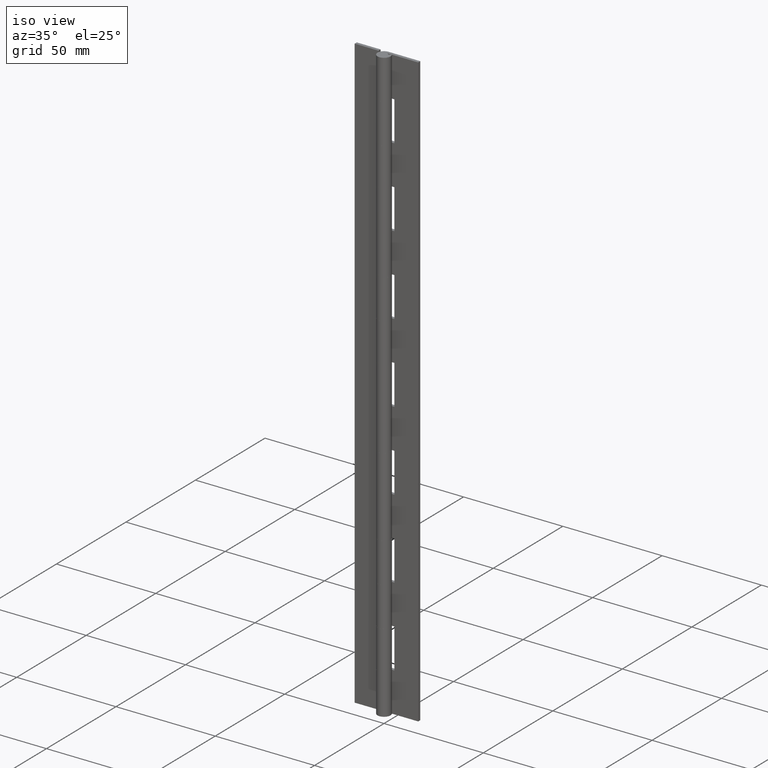
[diagram: clean part render]
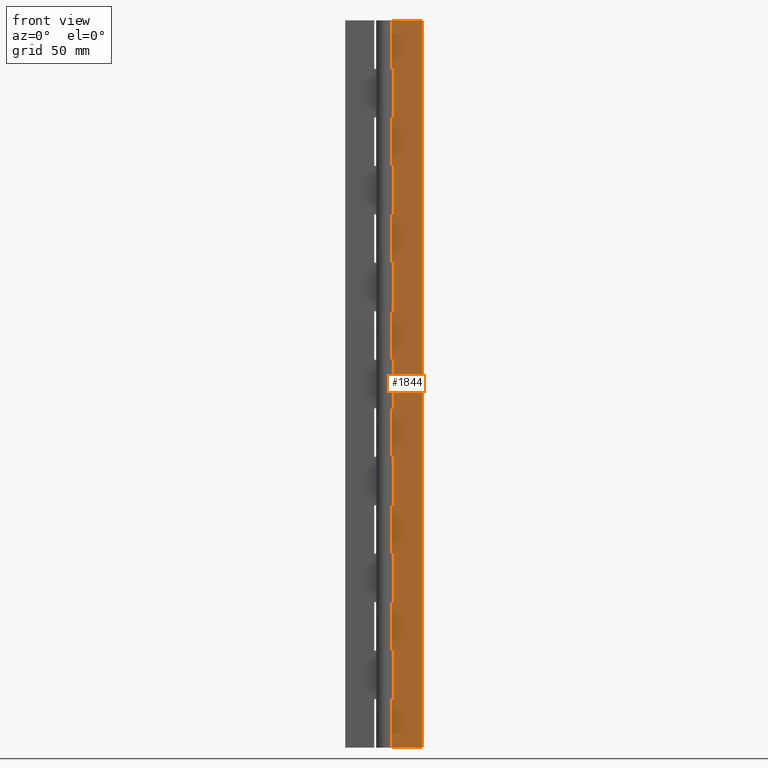
[diagram: tour spotlight — one face highlighted and labeled with its STEP entity id]
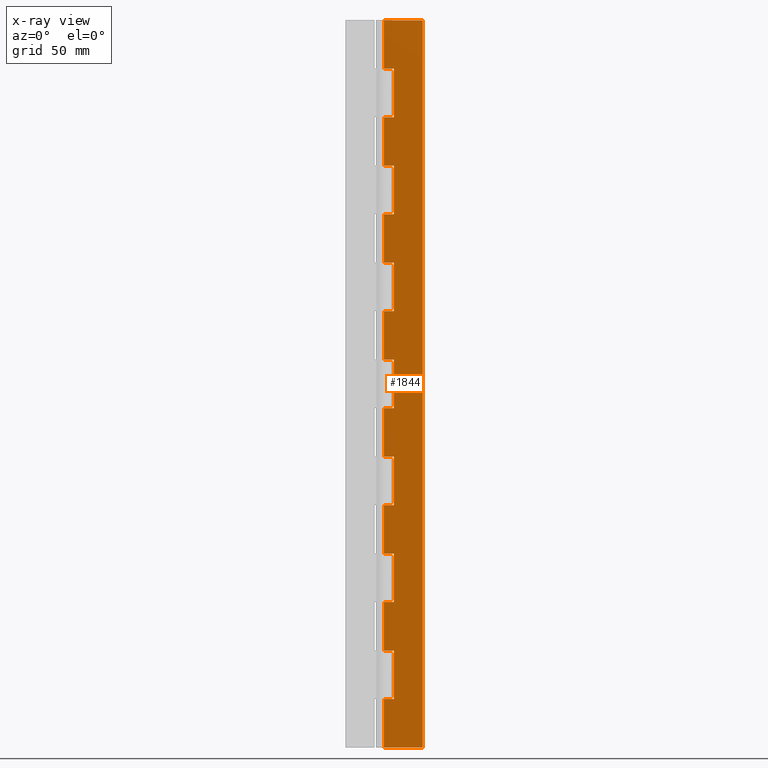
[diagram: x-ray of the same camera — body ghosted, this tour face saturated]
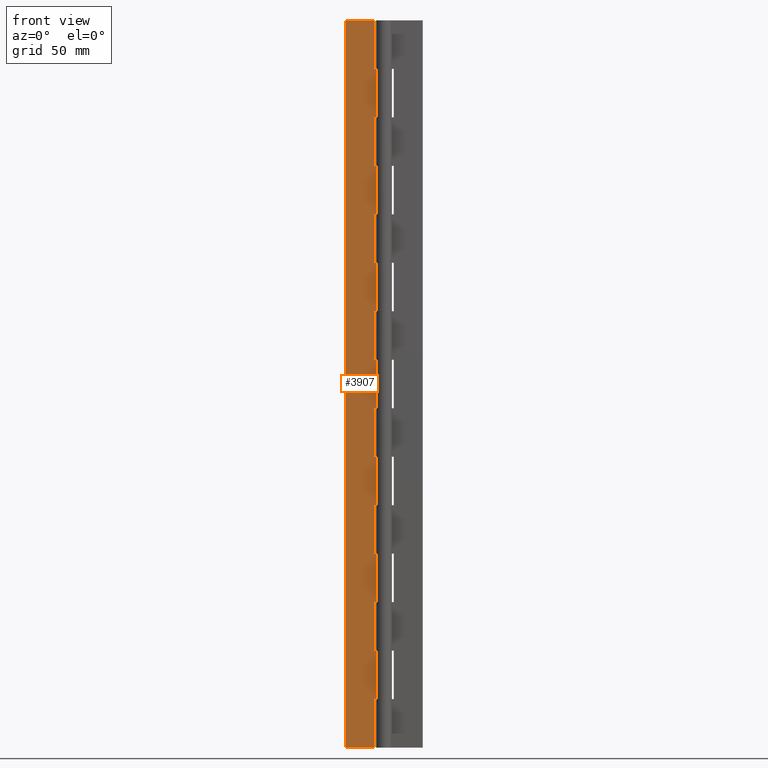
[diagram: tour spotlight — one face highlighted and labeled with its STEP entity id]
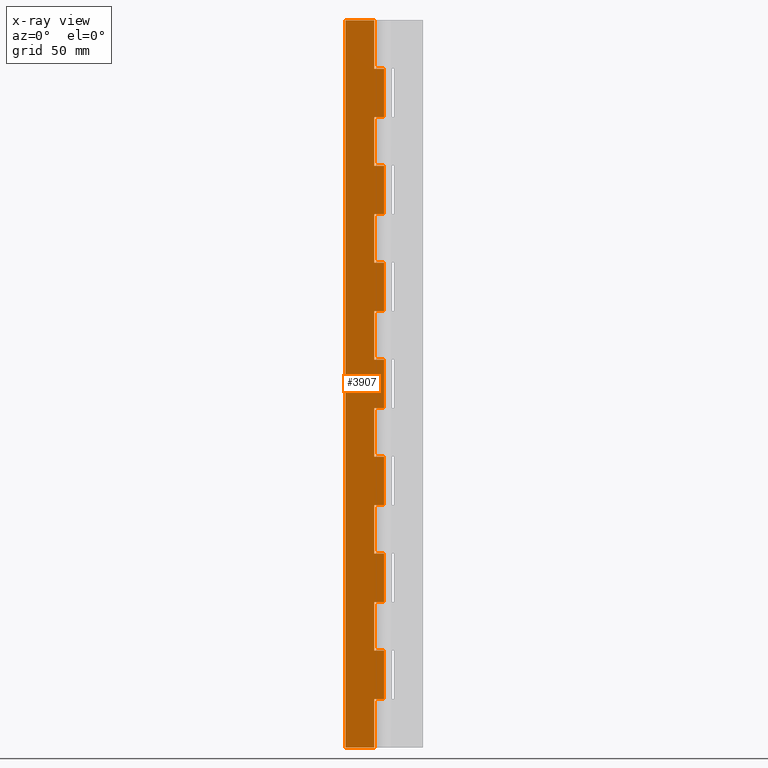
[diagram: x-ray of the same camera — body ghosted, this tour face saturated]
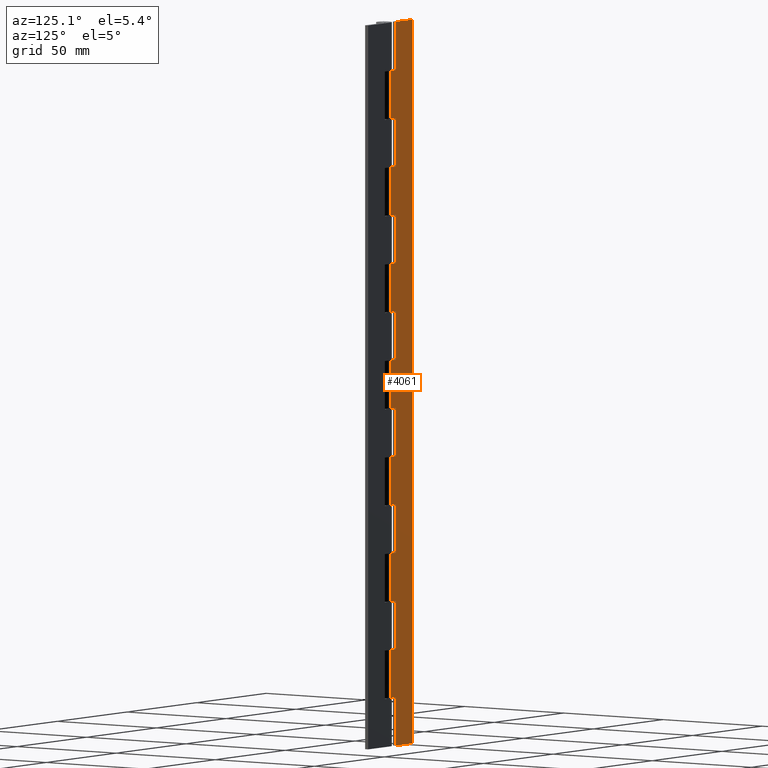
[diagram: tour spotlight — one face highlighted and labeled with its STEP entity id]
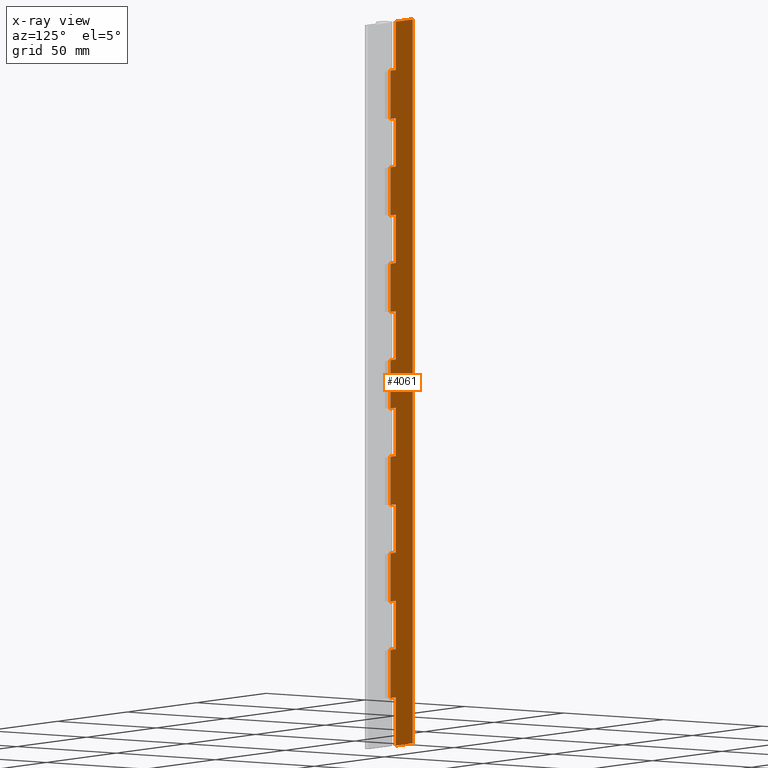
[diagram: x-ray of the same camera — body ghosted, this tour face saturated]
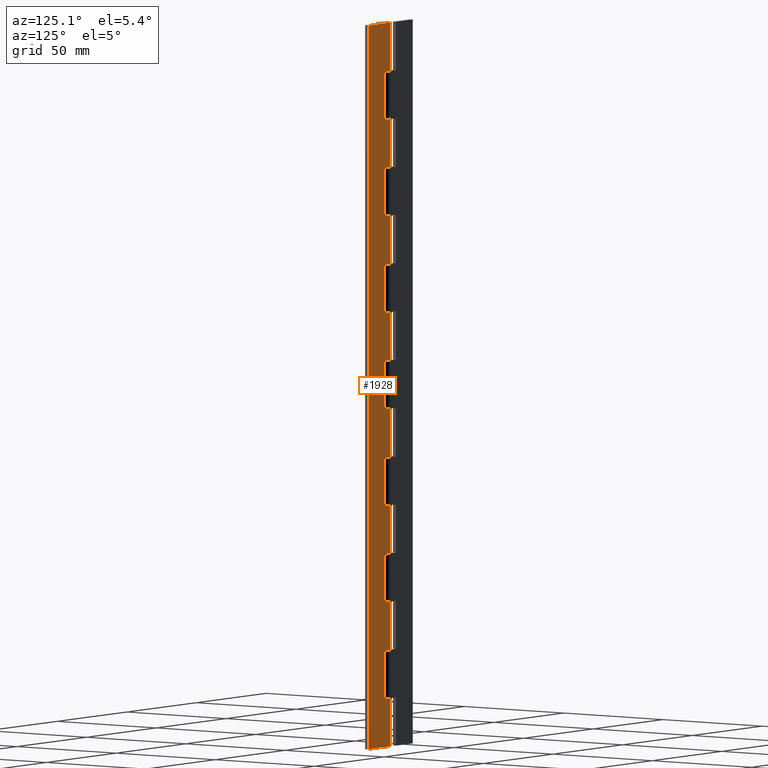
[diagram: tour spotlight — one face highlighted and labeled with its STEP entity id]
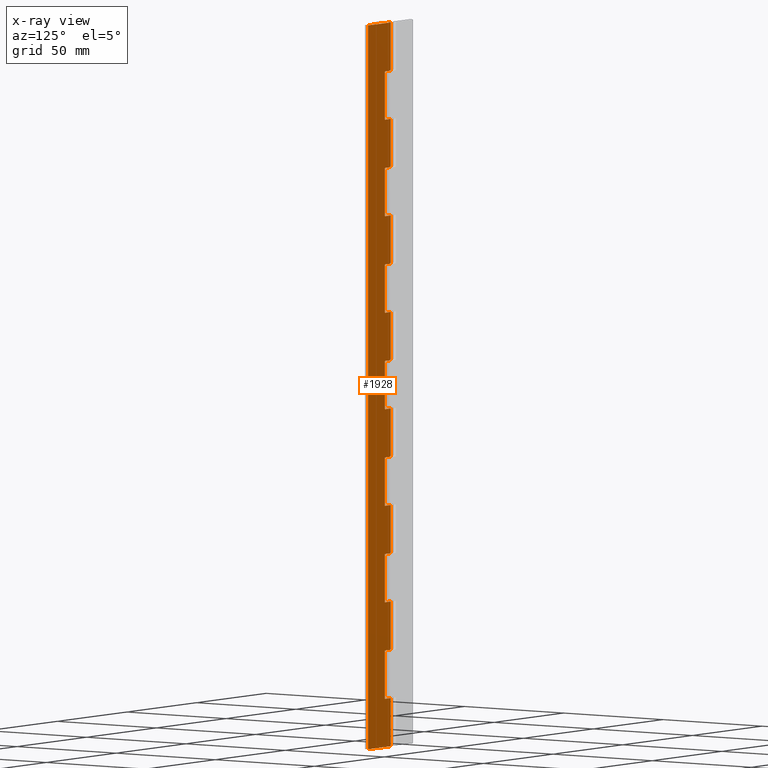
[diagram: x-ray of the same camera — body ghosted, this tour face saturated]
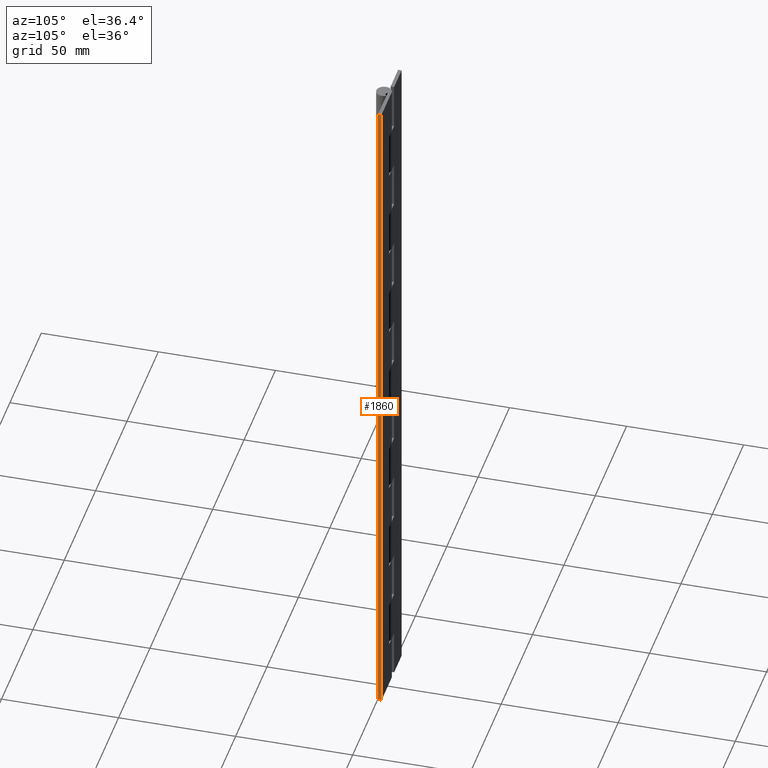
[diagram: tour spotlight — one face highlighted and labeled with its STEP entity id]
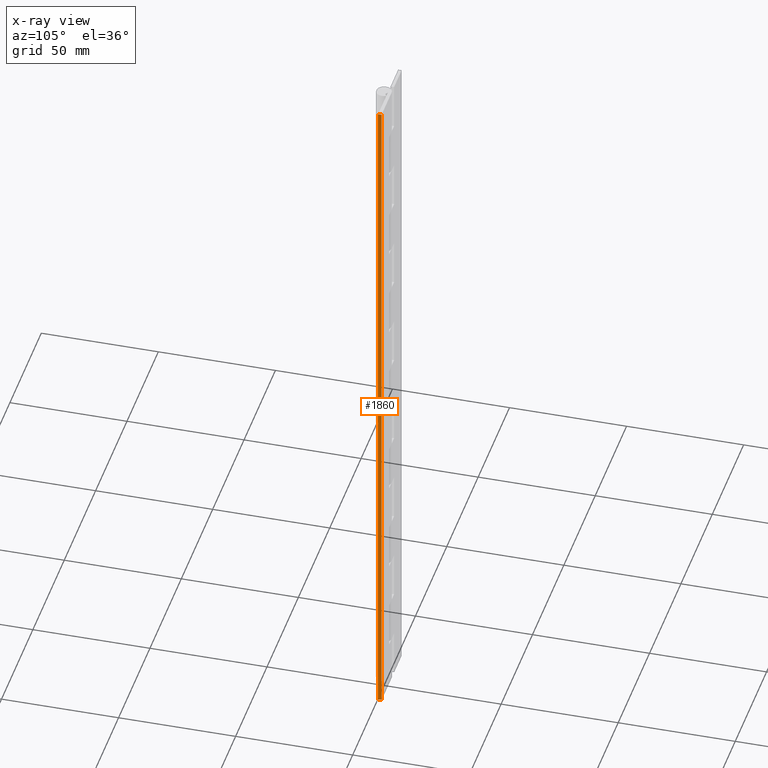
[diagram: x-ray of the same camera — body ghosted, this tour face saturated]
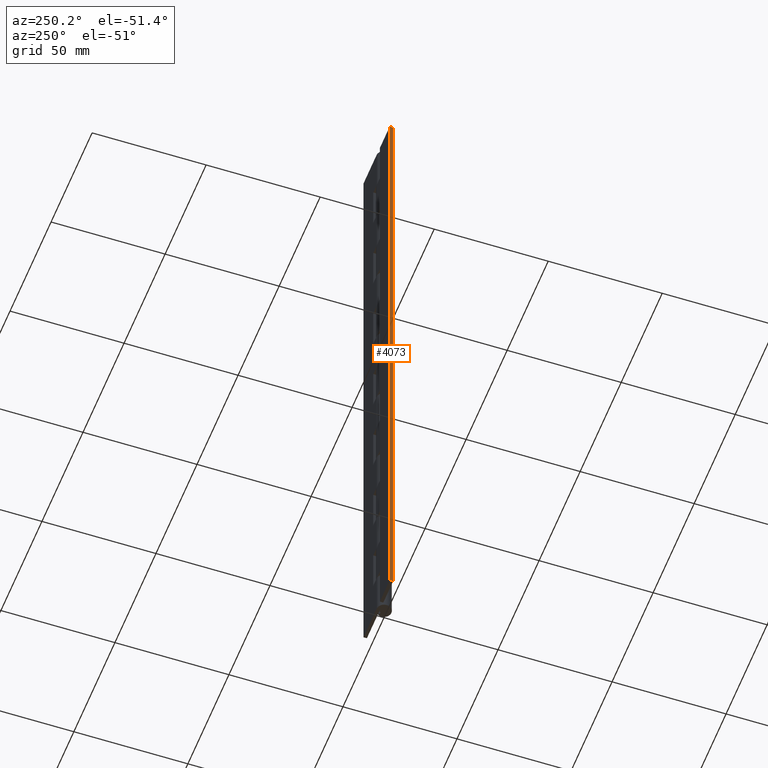
[diagram: tour spotlight — one face highlighted and labeled with its STEP entity id]
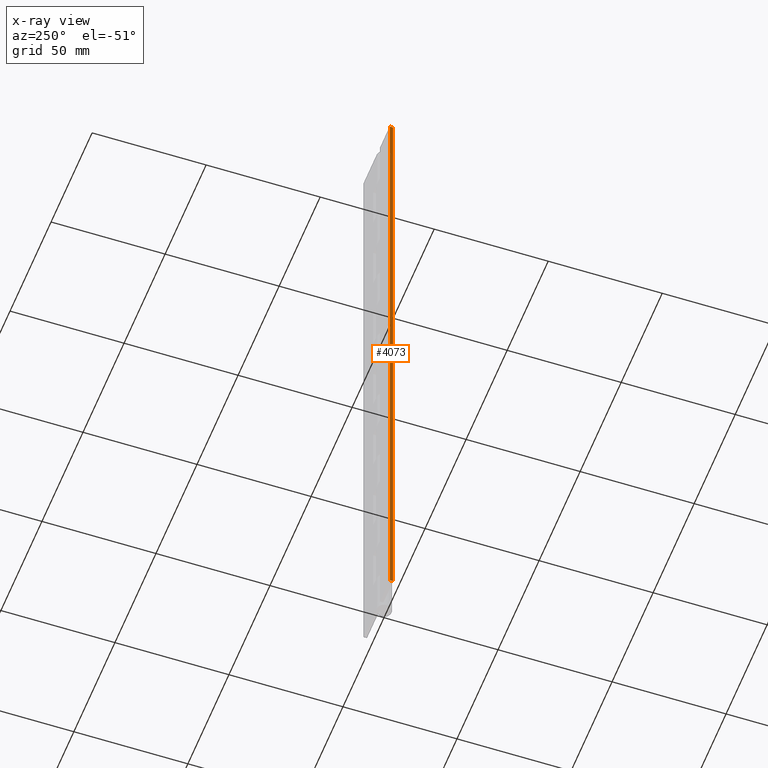
[diagram: x-ray of the same camera — body ghosted, this tour face saturated]
A machine part: a face-by-face anatomy tour. The part has 102 B-rep faces; the first image is the clean iso view, then the 6 largest visible faces are spotlighted one at a time (largest first), each with its STEP entity span.

Face 1 — front view, entity #1844. An x-ray twin of the same camera follows (body ghosted, this face saturated) — the face is partly hidden behind the body. In plain terms, the highlighted face is a freeform B-spline surface patch.
Definition (entity closure, byte-faithful):
#300=CARTESIAN_POINT('',(4.0,1.750000000000030,39.999991999999892));
#301=VERTEX_POINT('',#300);
#302=CARTESIAN_POINT('',(0.0,1.750000000000000,39.999991999999800));
#303=VERTEX_POINT('',#302);
#304=CARTESIAN_POINT('',(4.0,1.750000000000030,39.999991999999892));
#305=CARTESIAN_POINT('',(0.0,1.750000000000000,39.999991999999800));
#306=QUASI_UNIFORM_CURVE('',1,(#304,#305),.UNSPECIFIED.,.F.,.U.);
#307=EDGE_CURVE('',#301,#303,#306,.T.);
#378=CARTESIAN_POINT('',(0.0,1.750000000000000,19.999991999999999));
#379=VERTEX_POINT('',#378);
#380=CARTESIAN_POINT('',(4.0,1.750000000000030,19.999991999999949));
#381=VERTEX_POINT('',#380);
#382=CARTESIAN_POINT('',(0.0,1.750000000000000,19.999991999999999));
#383=CARTESIAN_POINT('',(4.0,1.750000000000030,19.999991999999949));
#384=QUASI_UNIFORM_CURVE('',1,(#382,#383),.UNSPECIFIED.,.F.,.U.);
#385=EDGE_CURVE('',#379,#381,#384,.T.);
#456=CARTESIAN_POINT('',(4.0,1.750000000000030,19.999991999999949));
#457=CARTESIAN_POINT('',(4.0,1.750000000000030,39.999991999999892));
#458=QUASI_UNIFORM_CURVE('',1,(#456,#457),.UNSPECIFIED.,.F.,.U.);
#459=EDGE_CURVE('',#381,#301,#458,.T.);
#476=CARTESIAN_POINT('',(4.0,1.750000000000030,79.999991999999892));
#477=VERTEX_POINT('',#476);
#478=CARTESIAN_POINT('',(0.0,1.750000000000000,79.999991999999892));
#479=VERTEX_POINT('',#478);
#480=CARTESIAN_POINT('',(4.0,1.750000000000030,79.999991999999892));
#481=CARTESIAN_POINT('',(0.0,1.750000000000000,79.999991999999892));
#482=QUASI_UNIFORM_CURVE('',1,(#480,#481),.UNSPECIFIED.,.F.,.U.);
#483=EDGE_CURVE('',#477,#479,#482,.T.);
#554=CARTESIAN_POINT('',(0.0,1.750000000000000,59.999991999999999));
#555=VERTEX_POINT('',#554);
#556=CARTESIAN_POINT('',(4.0,1.750000000000030,59.999991999999999));
#557=VERTEX_POINT('',#556);
#558=CARTESIAN_POINT('',(0.0,1.750000000000000,59.999991999999999));
#559=CARTESIAN_POINT('',(4.0,1.750000000000030,59.999991999999999));
#560=QUASI_UNIFORM_CURVE('',1,(#558,#559),.UNSPECIFIED.,.F.,.U.);
#561=EDGE_CURVE('',#555,#557,#560,.T.);
#632=CARTESIAN_POINT('',(4.0,1.750000000000030,59.999991999999999));
#633=CARTESIAN_POINT('',(4.0,1.750000000000030,79.999991999999892));
#634=QUASI_UNIFORM_CURVE('',1,(#632,#633),.UNSPECIFIED.,.F.,.U.);
#635=EDGE_CURVE('',#557,#477,#634,.T.);
#652=CARTESIAN_POINT('',(4.0,1.750000000000030,119.999992000000010));
#653=VERTEX_POINT('',#652);
#654=CARTESIAN_POINT('',(0.0,1.750000000000000,119.999992000000010));
#655=VERTEX_POINT('',#654);
#656=CARTESIAN_POINT('',(4.0,1.750000000000030,119.999992000000010));
#657=CARTESIAN_POINT('',(0.0,1.750000000000000,119.999992000000010));
#658=QUASI_UNIFORM_CURVE('',1,(#656,#657),.UNSPECIFIED.,.F.,.U.);
#659=EDGE_CURVE('',#653,#655,#658,.T.);
#730=CARTESIAN_POINT('',(0.0,1.750000000000000,99.999991999999992));
#731=VERTEX_POINT('',#730);
#732=CARTESIAN_POINT('',(4.0,1.750000000000030,99.999991999999992));
#733=VERTEX_POINT('',#732);
#734=CARTESIAN_POINT('',(0.0,1.750000000000000,99.999991999999992));
#735=CARTESIAN_POINT('',(4.0,1.750000000000030,99.999991999999992));
#736=QUASI_UNIFORM_CURVE('',1,(#734,#735),.UNSPECIFIED.,.F.,.U.);
#737=EDGE_CURVE('',#731,#733,#736,.T.);
#808=CARTESIAN_POINT('',(4.0,1.750000000000030,99.999991999999992));
#809=CARTESIAN_POINT('',(4.0,1.750000000000030,119.999992000000010));
#810=QUASI_UNIFORM_CURVE('',1,(#808,#809),.UNSPECIFIED.,.F.,.U.);
#811=EDGE_CURVE('',#733,#653,#810,.T.);
#828=CARTESIAN_POINT('',(4.0,1.750000000000030,159.999991999999990));
#829=VERTEX_POINT('',#828);
#830=CARTESIAN_POINT('',(0.0,1.750000000000000,159.999991999999990));
#831=VERTEX_POINT('',#830);
#832=CARTESIAN_POINT('',(4.0,1.750000000000030,159.999991999999990));
#833=CARTESIAN_POINT('',(0.0,1.750000000000000,159.999991999999990));
#834=QUASI_UNIFORM_CURVE('',1,(#832,#833),.UNSPECIFIED.,.F.,.U.);
#835=EDGE_CURVE('',#829,#831,#834,.T.);
#906=CARTESIAN_POINT('',(0.0,1.750000000000000,139.999991999999990));
#907=VERTEX_POINT('',#906);
#908=CARTESIAN_POINT('',(4.0,1.750000000000030,139.999991999999990));
#909=VERTEX_POINT('',#908);
#910=CARTESIAN_POINT('',(0.0,1.750000000000000,139.999991999999990));
#911=CARTESIAN_POINT('',(4.0,1.750000000000030,139.999991999999990));
#912=QUASI_UNIFORM_CURVE('',1,(#910,#911),.UNSPECIFIED.,.F.,.U.);
#913=EDGE_CURVE('',#907,#909,#912,.T.);
#984=CARTESIAN_POINT('',(4.0,1.750000000000030,139.999991999999990));
#985=CARTESIAN_POINT('',(4.0,1.750000000000030,159.999991999999990));
#986=QUASI_UNIFORM_CURVE('',1,(#984,#985),.UNSPECIFIED.,.F.,.U.);
#987=EDGE_CURVE('',#909,#829,#986,.T.);
#1004=CARTESIAN_POINT('',(4.0,1.750000000000030,199.999991999999990));
#1005=VERTEX_POINT('',#1004);
#1006=CARTESIAN_POINT('',(0.0,1.750000000000000,199.999991999999990));
#1007=VERTEX_POINT('',#1006);
#1008=CARTESIAN_POINT('',(4.0,1.750000000000030,199.999991999999990));
#1009=CARTESIAN_POINT('',(0.0,1.750000000000000,199.999991999999990));
#1010=QUASI_UNIFORM_CURVE('',1,(#1008,#1009),.UNSPECIFIED.,.F.,.U.);
#1011=EDGE_CURVE('',#1005,#1007,#1010,.T.);
#1082=CARTESIAN_POINT('',(0.0,1.750000000000000,179.999991999999990));
#1083=VERTEX_POINT('',#1082);
#1084=CARTESIAN_POINT('',(4.0,1.750000000000030,179.999991999999990));
#1085=VERTEX_POINT('',#1084);
#1086=CARTESIAN_POINT('',(0.0,1.750000000000000,179.999991999999990));
#1087=CARTESIAN_POINT('',(4.0,1.750000000000030,179.999991999999990));
#1088=QUASI_UNIFORM_CURVE('',1,(#1086,#1087),.UNSPECIFIED.,.F.,.U.);
#1089=EDGE_CURVE('',#1083,#1085,#1088,.T.);
#1160=CARTESIAN_POINT('',(4.0,1.750000000000030,179.999991999999990));
#1161=CARTESIAN_POINT('',(4.0,1.750000000000030,199.999991999999990));
#1162=QUASI_UNIFORM_CURVE('',1,(#1160,#1161),.UNSPECIFIED.,.F.,.U.);
#1163=EDGE_CURVE('',#1085,#1005,#1162,.T.);
#1180=CARTESIAN_POINT('',(4.0,1.750000000000030,239.999991999999990));
#1181=VERTEX_POINT('',#1180);
#1182=CARTESIAN_POINT('',(0.0,1.750000000000000,239.999991999999990));
#1183=VERTEX_POINT('',#1182);
#1184=CARTESIAN_POINT('',(4.0,1.750000000000030,239.999991999999990));
#1185=CARTESIAN_POINT('',(0.0,1.750000000000000,239.999991999999990));
#1186=QUASI_UNIFORM_CURVE('',1,(#1184,#1185),.UNSPECIFIED.,.F.,.U.);
#1187=EDGE_CURVE('',#1181,#1183,#1186,.T.);
#1258=CARTESIAN_POINT('',(0.0,1.750000000000000,219.999991999999990));
#1259=VERTEX_POINT('',#1258);
#1260=CARTESIAN_POINT('',(4.0,1.750000000000030,219.999991999999990));
#1261=VERTEX_POINT('',#1260);
#1262=CARTESIAN_POINT('',(0.0,1.750000000000000,219.999991999999990));
#1263=CARTESIAN_POINT('',(4.0,1.750000000000030,219.999991999999990));
#1264=QUASI_UNIFORM_CURVE('',1,(#1262,#1263),.UNSPECIFIED.,.F.,.U.);
#1265=EDGE_CURVE('',#1259,#1261,#1264,.T.);
#1336=CARTESIAN_POINT('',(4.0,1.750000000000030,219.999991999999990));
#1337=CARTESIAN_POINT('',(4.0,1.750000000000030,239.999991999999990));
#1338=QUASI_UNIFORM_CURVE('',1,(#1336,#1337),.UNSPECIFIED.,.F.,.U.);
#1339=EDGE_CURVE('',#1261,#1181,#1338,.T.);
#1356=CARTESIAN_POINT('',(4.0,1.750000000000030,279.999992000000020));
#1357=VERTEX_POINT('',#1356);
#1358=CARTESIAN_POINT('',(0.0,1.750000000000000,279.999992000000020));
#1359=VERTEX_POINT('',#1358);
#1360=CARTESIAN_POINT('',(4.0,1.750000000000030,279.999992000000020));
#1361=CARTESIAN_POINT('',(0.0,1.750000000000000,279.999992000000020));
#1362=QUASI_UNIFORM_CURVE('',1,(#1360,#1361),.UNSPECIFIED.,.F.,.U.);
#1363=EDGE_CURVE('',#1357,#1359,#1362,.T.);
#1434=CARTESIAN_POINT('',(0.0,1.750000000000000,259.999992000000020));
#1435=VERTEX_POINT('',#1434);
#1436=CARTESIAN_POINT('',(4.0,1.750000000000030,259.999992000000020));
#1437=VERTEX_POINT('',#1436);
#1438=CARTESIAN_POINT('',(0.0,1.750000000000000,259.999992000000020));
#1439=CARTESIAN_POINT('',(4.0,1.750000000000030,259.999992000000020));
#1440=QUASI_UNIFORM_CURVE('',1,(#1438,#1439),.UNSPECIFIED.,.F.,.U.);
#1441=EDGE_CURVE('',#1435,#1437,#1440,.T.);
#1512=CARTESIAN_POINT('',(4.0,1.750000000000030,259.999992000000020));
#1513=CARTESIAN_POINT('',(4.0,1.750000000000030,279.999992000000020));
#1514=QUASI_UNIFORM_CURVE('',1,(#1512,#1513),.UNSPECIFIED.,.F.,.U.);
#1515=EDGE_CURVE('',#1437,#1357,#1514,.T.);
#1541=CARTESIAN_POINT('',(16.0,1.750000000000000,0.0));
#1542=VERTEX_POINT('',#1541);
#1548=CARTESIAN_POINT('',(0.0,1.750000000000000,0.0));
#1549=VERTEX_POINT('',#1548);
#1550=CARTESIAN_POINT('',(16.0,1.750000000000000,0.0));
#1551=CARTESIAN_POINT('',(0.0,1.750000000000000,0.0));
#1552=QUASI_UNIFORM_CURVE('',1,(#1550,#1551),.UNSPECIFIED.,.F.,.U.);
#1553=EDGE_CURVE('',#1542,#1549,#1552,.T.);
#1647=CARTESIAN_POINT('',(0.0,1.750000000000000,299.999992000000020));
#1648=VERTEX_POINT('',#1647);
#1668=CARTESIAN_POINT('',(16.0,1.750000000000000,299.999992000000020));
#1669=VERTEX_POINT('',#1668);
#1670=CARTESIAN_POINT('',(16.0,1.750000000000000,299.999992000000020));
#1671=CARTESIAN_POINT('',(0.0,1.750000000000000,299.999992000000020));
#1672=QUASI_UNIFORM_CURVE('',1,(#1670,#1671),.UNSPECIFIED.,.F.,.U.);
#1673=EDGE_CURVE('',#1669,#1648,#1672,.T.);
#1764=CARTESIAN_POINT('',(0.0,1.750000000000000,299.999992000000020));
#1765=CARTESIAN_POINT('',(0.0,1.750000000000000,279.999992000000020));
#1766=QUASI_UNIFORM_CURVE('',1,(#1764,#1765),.UNSPECIFIED.,.F.,.U.);
#1767=EDGE_CURVE('',#1648,#1359,#1766,.T.);
#1773=CARTESIAN_POINT('',(-0.799199968988894,1.750000000000000,314.984999467497570));
#1774=CARTESIAN_POINT('',(-0.799199968988894,1.750000000000000,-14.985007467497621));
#1775=CARTESIAN_POINT('',(16.799200398142339,1.750000000000000,314.984999467497570));
#1776=CARTESIAN_POINT('',(16.799200398142339,1.750000000000000,-14.985007467497621));
#1777=B_SPLINE_SURFACE_WITH_KNOTS('',1,1,((#1773,#1775),(#1774,#1776)),.UNSPECIFIED.,.F.,.F.,.U.,(2,2),(2,2),(0.0,329.970006934995180),(0.0,17.598400367131230),.UNSPECIFIED.);
#1778=ORIENTED_EDGE('',*,*,#385,.F.);
#1779=CARTESIAN_POINT('',(0.0,1.750000000000000,19.999991999999999));
#1780=CARTESIAN_POINT('',(0.0,1.750000000000000,0.0));
#1781=QUASI_UNIFORM_CURVE('',1,(#1779,#1780),.UNSPECIFIED.,.F.,.U.);
#1782=EDGE_CURVE('',#379,#1549,#1781,.T.);
#1783=ORIENTED_EDGE('',*,*,#1782,.T.);
#1784=ORIENTED_EDGE('',*,*,#1553,.F.);
#1785=CARTESIAN_POINT('',(16.0,1.750000000000000,299.999992000000020));
#1786=CARTESIAN_POINT('',(16.0,1.750000000000000,0.0));
#1787=QUASI_UNIFORM_CURVE('',1,(#1785,#1786),.UNSPECIFIED.,.F.,.U.);
#1788=EDGE_CURVE('',#1669,#1542,#1787,.T.);
#1789=ORIENTED_EDGE('',*,*,#1788,.F.);
#1790=ORIENTED_EDGE('',*,*,#1673,.T.);
#1791=ORIENTED_EDGE('',*,*,#1767,.T.);
#1792=ORIENTED_EDGE('',*,*,#1363,.F.);
#1793=ORIENTED_EDGE('',*,*,#1515,.F.);
#1794=ORIENTED_EDGE('',*,*,#1441,.F.);
#1795=CARTESIAN_POINT('',(0.0,1.750000000000000,259.999992000000020));
#1796=CARTESIAN_POINT('',(0.0,1.750000000000000,239.999991999999990));
#1797=QUASI_UNIFORM_CURVE('',1,(#1795,#1796),.UNSPECIFIED.,.F.,.U.);
#1798=EDGE_CURVE('',#1435,#1183,#1797,.T.);
#1799=ORIENTED_EDGE('',*,*,#1798,.T.);
#1800=ORIENTED_EDGE('',*,*,#1187,.F.);
#1801=ORIENTED_EDGE('',*,*,#1339,.F.);
#1802=ORIENTED_EDGE('',*,*,#1265,.F.);
#1803=CARTESIAN_POINT('',(0.0,1.750000000000000,219.999991999999990));
#1804=CARTESIAN_POINT('',(0.0,1.750000000000000,199.999991999999990));
#1805=QUASI_UNIFORM_CURVE('',1,(#1803,#1804),.UNSPECIFIED.,.F.,.U.);
#1806=EDGE_CURVE('',#1259,#1007,#1805,.T.);
#1807=ORIENTED_EDGE('',*,*,#1806,.T.);
#1808=ORIENTED_EDGE('',*,*,#1011,.F.);
#1809=ORIENTED_EDGE('',*,*,#1163,.F.);
#1810=ORIENTED_EDGE('',*,*,#1089,.F.);
#1811=CARTESIAN_POINT('',(0.0,1.750000000000000,179.999991999999990));
#1812=CARTESIAN_POINT('',(0.0,1.750000000000000,159.999991999999990));
#1813=QUASI_UNIFORM_CURVE('',1,(#1811,#1812),.UNSPECIFIED.,.F.,.U.);
#1814=EDGE_CURVE('',#1083,#831,#1813,.T.);
#1815=ORIENTED_EDGE('',*,*,#1814,.T.);
#1816=ORIENTED_EDGE('',*,*,#835,.F.);
#1817=ORIENTED_EDGE('',*,*,#987,.F.);
#1818=ORIENTED_EDGE('',*,*,#913,.F.);
#1819=CARTESIAN_POINT('',(0.0,1.750000000000000,139.999991999999990));
#1820=CARTESIAN_POINT('',(0.0,1.750000000000000,119.999992000000010));
#1821=QUASI_UNIFORM_CURVE('',1,(#1819,#1820),.UNSPECIFIED.,.F.,.U.);
#1822=EDGE_CURVE('',#907,#655,#1821,.T.);
#1823=ORIENTED_EDGE('',*,*,#1822,.T.);
#1824=ORIENTED_EDGE('',*,*,#659,.F.);
#1825=ORIENTED_EDGE('',*,*,#811,.F.);
#1826=ORIENTED_EDGE('',*,*,#737,.F.);
#1827=CARTESIAN_POINT('',(0.0,1.750000000000000,99.999991999999992));
#1828=CARTESIAN_POINT('',(0.0,1.750000000000000,79.999991999999892));
#1829=QUASI_UNIFORM_CURVE('',1,(#1827,#1828),.UNSPECIFIED.,.F.,.U.);
#1830=EDGE_CURVE('',#731,#479,#1829,.T.);
#1831=ORIENTED_EDGE('',*,*,#1830,.T.);
#1832=ORIENTED_EDGE('',*,*,#483,.F.);
#1833=ORIENTED_EDGE('',*,*,#635,.F.);
#1834=ORIENTED_EDGE('',*,*,#561,.F.);
#1835=CARTESIAN_POINT('',(0.0,1.750000000000000,59.999991999999999));
#1836=CARTESIAN_POINT('',(0.0,1.750000000000000,39.999991999999800));
#1837=QUASI_UNIFORM_CURVE('',1,(#1835,#1836),.UNSPECIFIED.,.F.,.U.);
#1838=EDGE_CURVE('',#555,#303,#1837,.T.);
#1839=ORIENTED_EDGE('',*,*,#1838,.T.);
#1840=ORIENTED_EDGE('',*,*,#307,.F.);
#1841=ORIENTED_EDGE('',*,*,#459,.F.);
#1842=EDGE_LOOP('',(#1778,#1783,#1784,#1789,#1790,#1791,#1792,#1793,#1794,#1799,#1800,#1801,#1802,#1807,#1808,#1809,#1810,#1815,#1816,#1817,#1818,#1823,#1824,#1825,#1826,#1831,#1832,#1833,#1834,#1839,#1840,#1841));
#1843=FACE_OUTER_BOUND('',#1842,.T.);
#1844=ADVANCED_FACE('',(#1843),#1777,.T.);

Face 2 — front view, entity #3907. An x-ray twin of the same camera follows (body ghosted, this face saturated) — the face is partly hidden behind the body. In plain terms, the highlighted face is a freeform B-spline surface patch.
Definition (entity closure, byte-faithful):
#2547=CARTESIAN_POINT('',(1.071563E-016,1.750000000000000,19.999991999999800));
#2548=VERTEX_POINT('',#2547);
#2568=CARTESIAN_POINT('',(-4.0,1.750000000000030,19.999991999999800));
#2569=VERTEX_POINT('',#2568);
#2570=CARTESIAN_POINT('',(1.071563E-016,1.750000000000000,19.999991999999800));
#2571=CARTESIAN_POINT('',(-4.0,1.750000000000030,19.999991999999800));
#2572=QUASI_UNIFORM_CURVE('',1,(#2570,#2571),.UNSPECIFIED.,.F.,.U.);
#2573=EDGE_CURVE('',#2548,#2569,#2572,.T.);
#2595=CARTESIAN_POINT('',(-4.0,1.750000000000000,0.0));
#2596=VERTEX_POINT('',#2595);
#2597=CARTESIAN_POINT('',(-4.0,1.750000000000030,19.999991999999800));
#2598=CARTESIAN_POINT('',(-4.0,1.750000000000000,0.0));
#2599=QUASI_UNIFORM_CURVE('',1,(#2597,#2598),.UNSPECIFIED.,.F.,.U.);
#2600=EDGE_CURVE('',#2569,#2596,#2599,.T.);
#2653=CARTESIAN_POINT('',(-4.0,1.750000000000000,39.999991999999800));
#2654=VERTEX_POINT('',#2653);
#2660=CARTESIAN_POINT('',(1.071563E-016,1.750000000000000,39.999991999999800));
#2661=VERTEX_POINT('',#2660);
#2662=CARTESIAN_POINT('',(-4.0,1.750000000000000,39.999991999999800));
#2663=CARTESIAN_POINT('',(1.071563E-016,1.750000000000000,39.999991999999800));
#2664=QUASI_UNIFORM_CURVE('',1,(#2662,#2663),.UNSPECIFIED.,.F.,.U.);
#2665=EDGE_CURVE('',#2654,#2661,#2664,.T.);
#2731=CARTESIAN_POINT('',(1.071563E-016,1.750000000000000,59.999991999999800));
#2732=VERTEX_POINT('',#2731);
#2752=CARTESIAN_POINT('',(-4.0,1.750000000000030,59.999991999999800));
#2753=VERTEX_POINT('',#2752);
#2754=CARTESIAN_POINT('',(1.071563E-016,1.750000000000000,59.999991999999800));
#2755=CARTESIAN_POINT('',(-4.0,1.750000000000030,59.999991999999800));
#2756=QUASI_UNIFORM_CURVE('',1,(#2754,#2755),.UNSPECIFIED.,.F.,.U.);
#2757=EDGE_CURVE('',#2732,#2753,#2756,.T.);
#2779=CARTESIAN_POINT('',(-4.0,1.750000000000030,59.999991999999800));
#2780=CARTESIAN_POINT('',(-4.0,1.750000000000000,39.999991999999800));
#2781=QUASI_UNIFORM_CURVE('',1,(#2779,#2780),.UNSPECIFIED.,.F.,.U.);
#2782=EDGE_CURVE('',#2753,#2654,#2781,.T.);
#2829=CARTESIAN_POINT('',(-4.0,1.750000000000000,79.999991999999892));
#2830=VERTEX_POINT('',#2829);
#2836=CARTESIAN_POINT('',(1.071563E-016,1.750000000000000,79.999991999999892));
#2837=VERTEX_POINT('',#2836);
#2838=CARTESIAN_POINT('',(-4.0,1.750000000000000,79.999991999999892));
#2839=CARTESIAN_POINT('',(1.071563E-016,1.750000000000000,79.999991999999892));
#2840=QUASI_UNIFORM_CURVE('',1,(#2838,#2839),.UNSPECIFIED.,.F.,.U.);
#2841=EDGE_CURVE('',#2830,#2837,#2840,.T.);
#2907=CARTESIAN_POINT('',(1.071563E-016,1.750000000000000,99.999991999999892));
#2908=VERTEX_POINT('',#2907);
#2928=CARTESIAN_POINT('',(-4.0,1.750000000000030,99.999991999999807));
#2929=VERTEX_POINT('',#2928);
#2930=CARTESIAN_POINT('',(1.071563E-016,1.750000000000000,99.999991999999892));
#2931=CARTESIAN_POINT('',(-4.0,1.750000000000030,99.999991999999807));
#2932=QUASI_UNIFORM_CURVE('',1,(#2930,#2931),.UNSPECIFIED.,.F.,.U.);
#2933=EDGE_CURVE('',#2908,#2929,#2932,.T.);
#2955=CARTESIAN_POINT('',(-4.0,1.750000000000030,99.999991999999807));
#2956=CARTESIAN_POINT('',(-4.0,1.750000000000000,79.999991999999892));
#2957=QUASI_UNIFORM_CURVE('',1,(#2955,#2956),.UNSPECIFIED.,.F.,.U.);
#2958=EDGE_CURVE('',#2929,#2830,#2957,.T.);
#3005=CARTESIAN_POINT('',(-4.0,1.750000000000000,119.999992000000010));
#3006=VERTEX_POINT('',#3005);
#3012=CARTESIAN_POINT('',(1.071563E-016,1.750000000000000,119.999992000000010));
#3013=VERTEX_POINT('',#3012);
#3014=CARTESIAN_POINT('',(-4.0,1.750000000000000,119.999992000000010));
#3015=CARTESIAN_POINT('',(1.071563E-016,1.750000000000000,119.999992000000010));
#3016=QUASI_UNIFORM_CURVE('',1,(#3014,#3015),.UNSPECIFIED.,.F.,.U.);
#3017=EDGE_CURVE('',#3006,#3013,#3016,.T.);
#3083=CARTESIAN_POINT('',(1.071563E-016,1.750000000000000,139.999991999999790));
#3084=VERTEX_POINT('',#3083);
#3104=CARTESIAN_POINT('',(-4.0,1.750000000000030,139.999991999999790));
#3105=VERTEX_POINT('',#3104);
#3106=CARTESIAN_POINT('',(1.071563E-016,1.750000000000000,139.999991999999790));
#3107=CARTESIAN_POINT('',(-4.0,1.750000000000030,139.999991999999790));
#3108=QUASI_UNIFORM_CURVE('',1,(#3106,#3107),.UNSPECIFIED.,.F.,.U.);
#3109=EDGE_CURVE('',#3084,#3105,#3108,.T.);
#3131=CARTESIAN_POINT('',(-4.0,1.750000000000030,139.999991999999790));
#3132=CARTESIAN_POINT('',(-4.0,1.750000000000000,119.999992000000010));
#3133=QUASI_UNIFORM_CURVE('',1,(#3131,#3132),.UNSPECIFIED.,.F.,.U.);
#3134=EDGE_CURVE('',#3105,#3006,#3133,.T.);
#3181=CARTESIAN_POINT('',(-4.0,1.750000000000000,159.999991999999990));
#3182=VERTEX_POINT('',#3181);
#3188=CARTESIAN_POINT('',(1.071563E-016,1.750000000000000,159.999991999999990));
#3189=VERTEX_POINT('',#3188);
#3190=CARTESIAN_POINT('',(-4.0,1.750000000000000,159.999991999999990));
#3191=CARTESIAN_POINT('',(1.071563E-016,1.750000000000000,159.999991999999990));
#3192=QUASI_UNIFORM_CURVE('',1,(#3190,#3191),.UNSPECIFIED.,.F.,.U.);
#3193=EDGE_CURVE('',#3182,#3189,#3192,.T.);
#3259=CARTESIAN_POINT('',(1.071563E-016,1.750000000000000,179.999991999999990));
#3260=VERTEX_POINT('',#3259);
#3280=CARTESIAN_POINT('',(-4.0,1.750000000000030,179.999991999999990));
#3281=VERTEX_POINT('',#3280);
#3282=CARTESIAN_POINT('',(1.071563E-016,1.750000000000000,179.999991999999990));
#3283=CARTESIAN_POINT('',(-4.0,1.750000000000030,179.999991999999990));
#3284=QUASI_UNIFORM_CURVE('',1,(#3282,#3283),.UNSPECIFIED.,.F.,.U.);
#3285=EDGE_CURVE('',#3260,#3281,#3284,.T.);
#3307=CARTESIAN_POINT('',(-4.0,1.750000000000030,179.999991999999990));
#3308=CARTESIAN_POINT('',(-4.0,1.750000000000000,159.999991999999990));
#3309=QUASI_UNIFORM_CURVE('',1,(#3307,#3308),.UNSPECIFIED.,.F.,.U.);
#3310=EDGE_CURVE('',#3281,#3182,#3309,.T.);
#3357=CARTESIAN_POINT('',(-4.0,1.750000000000000,199.999991999999990));
#3358=VERTEX_POINT('',#3357);
#3364=CARTESIAN_POINT('',(1.071563E-016,1.750000000000000,199.999991999999990));
#3365=VERTEX_POINT('',#3364);
#3366=CARTESIAN_POINT('',(-4.0,1.750000000000000,199.999991999999990));
#3367=CARTESIAN_POINT('',(1.071563E-016,1.750000000000000,199.999991999999990));
#3368=QUASI_UNIFORM_CURVE('',1,(#3366,#3367),.UNSPECIFIED.,.F.,.U.);
#3369=EDGE_CURVE('',#3358,#3365,#3368,.T.);
#3435=CARTESIAN_POINT('',(1.071563E-016,1.750000000000000,219.999991999999990));
#3436=VERTEX_POINT('',#3435);
#3456=CARTESIAN_POINT('',(-4.0,1.750000000000030,219.999991999999990));
#3457=VERTEX_POINT('',#3456);
#3458=CARTESIAN_POINT('',(1.071563E-016,1.750000000000000,219.999991999999990));
#3459=CARTESIAN_POINT('',(-4.0,1.750000000000030,219.999991999999990));
#3460=QUASI_UNIFORM_CURVE('',1,(#3458,#3459),.UNSPECIFIED.,.F.,.U.);
#3461=EDGE_CURVE('',#3436,#3457,#3460,.T.);
#3483=CARTESIAN_POINT('',(-4.0,1.750000000000030,219.999991999999990));
#3484=CARTESIAN_POINT('',(-4.0,1.750000000000000,199.999991999999990));
#3485=QUASI_UNIFORM_CURVE('',1,(#3483,#3484),.UNSPECIFIED.,.F.,.U.);
#3486=EDGE_CURVE('',#3457,#3358,#3485,.T.);
#3533=CARTESIAN_POINT('',(-4.0,1.750000000000000,239.999991999999990));
#3534=VERTEX_POINT('',#3533);
#3540=CARTESIAN_POINT('',(1.071563E-016,1.750000000000000,239.999991999999990));
#3541=VERTEX_POINT('',#3540);
#3542=CARTESIAN_POINT('',(-4.0,1.750000000000000,239.999991999999990));
#3543=CARTESIAN_POINT('',(1.071563E-016,1.750000000000000,239.999991999999990));
#3544=QUASI_UNIFORM_CURVE('',1,(#3542,#3543),.UNSPECIFIED.,.F.,.U.);
#3545=EDGE_CURVE('',#3534,#3541,#3544,.T.);
#3611=CARTESIAN_POINT('',(1.071563E-016,1.750000000000000,259.999992000000020));
#3612=VERTEX_POINT('',#3611);
#3632=CARTESIAN_POINT('',(-4.0,1.750000000000030,259.999992000000020));
#3633=VERTEX_POINT('',#3632);
#3634=CARTESIAN_POINT('',(1.071563E-016,1.750000000000000,259.999992000000020));
#3635=CARTESIAN_POINT('',(-4.0,1.750000000000030,259.999992000000020));
#3636=QUASI_UNIFORM_CURVE('',1,(#3634,#3635),.UNSPECIFIED.,.F.,.U.);
#3637=EDGE_CURVE('',#3612,#3633,#3636,.T.);
#3659=CARTESIAN_POINT('',(-4.0,1.750000000000030,259.999992000000020));
#3660=CARTESIAN_POINT('',(-4.0,1.750000000000000,239.999991999999990));
#3661=QUASI_UNIFORM_CURVE('',1,(#3659,#3660),.UNSPECIFIED.,.F.,.U.);
#3662=EDGE_CURVE('',#3633,#3534,#3661,.T.);
#3709=CARTESIAN_POINT('',(-4.0,1.750000000000030,279.999992000000020));
#3710=VERTEX_POINT('',#3709);
#3716=CARTESIAN_POINT('',(1.071563E-016,1.750000000000000,279.999992000000020));
#3717=VERTEX_POINT('',#3716);
#3718=CARTESIAN_POINT('',(-4.0,1.750000000000030,279.999992000000020));
#3719=CARTESIAN_POINT('',(1.071563E-016,1.750000000000000,279.999992000000020));
#3720=QUASI_UNIFORM_CURVE('',1,(#3718,#3719),.UNSPECIFIED.,.F.,.U.);
#3721=EDGE_CURVE('',#3710,#3717,#3720,.T.);
#3757=CARTESIAN_POINT('',(-4.0,1.750000000000030,299.999992000000020));
#3758=VERTEX_POINT('',#3757);
#3759=CARTESIAN_POINT('',(-4.0,1.750000000000030,299.999992000000020));
#3760=CARTESIAN_POINT('',(-4.0,1.750000000000030,279.999992000000020));
#3761=QUASI_UNIFORM_CURVE('',1,(#3759,#3760),.UNSPECIFIED.,.F.,.U.);
#3762=EDGE_CURVE('',#3758,#3710,#3761,.T.);
#3786=CARTESIAN_POINT('',(-16.0,1.750000000000000,0.0));
#3787=VERTEX_POINT('',#3786);
#3788=CARTESIAN_POINT('',(-4.0,1.750000000000000,0.0));
#3789=CARTESIAN_POINT('',(-16.0,1.750000000000000,0.0));
#3790=QUASI_UNIFORM_CURVE('',1,(#3788,#3789),.UNSPECIFIED.,.F.,.U.);
#3791=EDGE_CURVE('',#2596,#3787,#3790,.T.);
#3813=CARTESIAN_POINT('',(-16.0,1.750000000000000,299.999992000000020));
#3814=VERTEX_POINT('',#3813);
#3815=CARTESIAN_POINT('',(-4.0,1.750000000000030,299.999992000000020));
#3816=CARTESIAN_POINT('',(-16.0,1.750000000000000,299.999992000000020));
#3817=QUASI_UNIFORM_CURVE('',1,(#3815,#3816),.UNSPECIFIED.,.F.,.U.);
#3818=EDGE_CURVE('',#3758,#3814,#3817,.T.);
#3836=CARTESIAN_POINT('',(-16.799199968988891,1.750000000000000,314.984999467497570));
#3837=CARTESIAN_POINT('',(-16.799199968988891,1.750000000000000,-14.985007467497621));
#3838=CARTESIAN_POINT('',(0.799200398142338,1.750000000000000,314.984999467497570));
#3839=CARTESIAN_POINT('',(0.799200398142338,1.750000000000000,-14.985007467497621));
#3840=B_SPLINE_SURFACE_WITH_KNOTS('',1,1,((#3836,#3838),(#3837,#3839)),.UNSPECIFIED.,.F.,.F.,.U.,(2,2),(2,2),(0.0,329.970006934995180),(0.0,17.598400367131230),.UNSPECIFIED.);
#3841=ORIENTED_EDGE('',*,*,#2600,.F.);
#3842=ORIENTED_EDGE('',*,*,#2573,.F.);
#3843=CARTESIAN_POINT('',(1.071563E-016,1.750000000000000,39.999991999999800));
#3844=CARTESIAN_POINT('',(1.071563E-016,1.750000000000000,19.999991999999800));
#3845=QUASI_UNIFORM_CURVE('',1,(#3843,#3844),.UNSPECIFIED.,.F.,.U.);
#3846=EDGE_CURVE('',#2661,#2548,#3845,.T.);
#3847=ORIENTED_EDGE('',*,*,#3846,.F.);
#3848=ORIENTED_EDGE('',*,*,#2665,.F.);
#3849=ORIENTED_EDGE('',*,*,#2782,.F.);
#3850=ORIENTED_EDGE('',*,*,#2757,.F.);
#3851=CARTESIAN_POINT('',(1.071563E-016,1.750000000000000,79.999991999999892));
#3852=CARTESIAN_POINT('',(1.071563E-016,1.750000000000000,59.999991999999800));
#3853=QUASI_UNIFORM_CURVE('',1,(#3851,#3852),.UNSPECIFIED.,.F.,.U.);
#3854=EDGE_CURVE('',#2837,#2732,#3853,.T.);
#3855=ORIENTED_EDGE('',*,*,#3854,.F.);
#3856=ORIENTED_EDGE('',*,*,#2841,.F.);
#3857=ORIENTED_EDGE('',*,*,#2958,.F.);
#3858=ORIENTED_EDGE('',*,*,#2933,.F.);
#3859=CARTESIAN_POINT('',(1.071563E-016,1.750000000000000,119.999992000000010));
#3860=CARTESIAN_POINT('',(1.071563E-016,1.750000000000000,99.999991999999892));
#3861=QUASI_UNIFORM_CURVE('',1,(#3859,#3860),.UNSPECIFIED.,.F.,.U.);
#3862=EDGE_CURVE('',#3013,#2908,#3861,.T.);
#3863=ORIENTED_EDGE('',*,*,#3862,.F.);
#3864=ORIENTED_EDGE('',*,*,#3017,.F.);
#3865=ORIENTED_EDGE('',*,*,#3134,.F.);
#3866=ORIENTED_EDGE('',*,*,#3109,.F.);
#3867=CARTESIAN_POINT('',(1.071563E-016,1.750000000000000,159.999991999999990));
#3868=CARTESIAN_POINT('',(1.071563E-016,1.750000000000000,139.999991999999790));
#3869=QUASI_UNIFORM_CURVE('',1,(#3867,#3868),.UNSPECIFIED.,.F.,.U.);
#3870=EDGE_CURVE('',#3189,#3084,#3869,.T.);
#3871=ORIENTED_EDGE('',*,*,#3870,.F.);
#3872=ORIENTED_EDGE('',*,*,#3193,.F.);
#3873=ORIENTED_EDGE('',*,*,#3310,.F.);
#3874=ORIENTED_EDGE('',*,*,#3285,.F.);
#3875=CARTESIAN_POINT('',(1.071563E-016,1.750000000000000,199.999991999999990));
#3876=CARTESIAN_POINT('',(1.071563E-016,1.750000000000000,179.999991999999990));
#3877=QUASI_UNIFORM_CURVE('',1,(#3875,#3876),.UNSPECIFIED.,.F.,.U.);
#3878=EDGE_CURVE('',#3365,#3260,#3877,.T.);
#3879=ORIENTED_EDGE('',*,*,#3878,.F.);
#3880=ORIENTED_EDGE('',*,*,#3369,.F.);
#3881=ORIENTED_EDGE('',*,*,#3486,.F.);
#3882=ORIENTED_EDGE('',*,*,#3461,.F.);
#3883=CARTESIAN_POINT('',(1.071563E-016,1.750000000000000,239.999991999999990));
#3884=CARTESIAN_POINT('',(1.071563E-016,1.750000000000000,219.999991999999990));
#3885=QUASI_UNIFORM_CURVE('',1,(#3883,#3884),.UNSPECIFIED.,.F.,.U.);
#3886=EDGE_CURVE('',#3541,#3436,#3885,.T.);
#3887=ORIENTED_EDGE('',*,*,#3886,.F.);
#3888=ORIENTED_EDGE('',*,*,#3545,.F.);
#3889=ORIENTED_EDGE('',*,*,#3662,.F.);
#3890=ORIENTED_EDGE('',*,*,#3637,.F.);
#3891=CARTESIAN_POINT('',(1.071563E-016,1.750000000000000,279.999992000000020));
#3892=CARTESIAN_POINT('',(1.071563E-016,1.750000000000000,259.999992000000020));
#3893=QUASI_UNIFORM_CURVE('',1,(#3891,#3892),.UNSPECIFIED.,.F.,.U.);
#3894=EDGE_CURVE('',#3717,#3612,#3893,.T.);
#3895=ORIENTED_EDGE('',*,*,#3894,.F.);
#3896=ORIENTED_EDGE('',*,*,#3721,.F.);
#3897=ORIENTED_EDGE('',*,*,#3762,.F.);
#3898=ORIENTED_EDGE('',*,*,#3818,.T.);
#3899=CARTESIAN_POINT('',(-16.0,1.750000000000000,299.999992000000020));
#3900=CARTESIAN_POINT('',(-16.0,1.750000000000000,0.0));
#3901=QUASI_UNIFORM_CURVE('',1,(#3899,#3900),.UNSPECIFIED.,.F.,.U.);
#3902=EDGE_CURVE('',#3814,#3787,#3901,.T.);
#3903=ORIENTED_EDGE('',*,*,#3902,.T.);
#3904=ORIENTED_EDGE('',*,*,#3791,.F.);
#3905=EDGE_LOOP('',(#3841,#3842,#3847,#3848,#3849,#3850,#3855,#3856,#3857,#3858,#3863,#3864,#3865,#3866,#3871,#3872,#3873,#3874,#3879,#3880,#3881,#3882,#3887,#3888,#3889,#3890,#3895,#3896,#3897,#3898,#3903,#3904));
#3906=FACE_OUTER_BOUND('',#3905,.T.);
#3907=ADVANCED_FACE('',(#3906),#3840,.T.);

Face 3 — auxiliary view, entity #4061. An x-ray twin of the same camera follows (body ghosted, this face saturated) — the face is partly hidden behind the body. In plain terms, the highlighted face is a freeform B-spline surface patch.
Definition (entity closure, byte-faithful):
#2517=CARTESIAN_POINT('',(0.0,3.250000000000000,19.999991999999800));
#2518=VERTEX_POINT('',#2517);
#2575=CARTESIAN_POINT('',(-4.0,3.250000000000000,19.999991999999800));
#2576=VERTEX_POINT('',#2575);
#2582=CARTESIAN_POINT('',(-4.0,3.250000000000000,19.999991999999800));
#2583=CARTESIAN_POINT('',(0.0,3.250000000000000,19.999991999999800));
#2584=QUASI_UNIFORM_CURVE('',1,(#2582,#2583),.UNSPECIFIED.,.F.,.U.);
#2585=EDGE_CURVE('',#2576,#2518,#2584,.T.);
#2602=CARTESIAN_POINT('',(-4.0,3.250000000000000,0.0));
#2603=VERTEX_POINT('',#2602);
#2609=CARTESIAN_POINT('',(-4.0,3.250000000000000,0.0));
#2610=CARTESIAN_POINT('',(-4.0,3.250000000000000,19.999991999999800));
#2611=QUASI_UNIFORM_CURVE('',1,(#2609,#2610),.UNSPECIFIED.,.F.,.U.);
#2612=EDGE_CURVE('',#2603,#2576,#2611,.T.);
#2625=CARTESIAN_POINT('',(0.0,3.250000000000000,39.999991999999892));
#2626=VERTEX_POINT('',#2625);
#2646=CARTESIAN_POINT('',(-4.0,3.250000000000000,39.999991999999892));
#2647=VERTEX_POINT('',#2646);
#2648=CARTESIAN_POINT('',(0.0,3.250000000000000,39.999991999999892));
#2649=CARTESIAN_POINT('',(-4.0,3.250000000000000,39.999991999999892));
#2650=QUASI_UNIFORM_CURVE('',1,(#2648,#2649),.UNSPECIFIED.,.F.,.U.);
#2651=EDGE_CURVE('',#2626,#2647,#2650,.T.);
#2701=CARTESIAN_POINT('',(0.0,3.250000000000000,59.999991999999800));
#2702=VERTEX_POINT('',#2701);
#2759=CARTESIAN_POINT('',(-4.0,3.250000000000000,59.999991999999800));
#2760=VERTEX_POINT('',#2759);
#2766=CARTESIAN_POINT('',(-4.0,3.250000000000000,59.999991999999800));
#2767=CARTESIAN_POINT('',(0.0,3.250000000000000,59.999991999999800));
#2768=QUASI_UNIFORM_CURVE('',1,(#2766,#2767),.UNSPECIFIED.,.F.,.U.);
#2769=EDGE_CURVE('',#2760,#2702,#2768,.T.);
#2785=CARTESIAN_POINT('',(-4.0,3.250000000000000,39.999991999999892));
#2786=CARTESIAN_POINT('',(-4.0,3.250000000000000,59.999991999999800));
#2787=QUASI_UNIFORM_CURVE('',1,(#2785,#2786),.UNSPECIFIED.,.F.,.U.);
#2788=EDGE_CURVE('',#2647,#2760,#2787,.T.);
#2801=CARTESIAN_POINT('',(0.0,3.250000000000000,79.999991999999892));
#2802=VERTEX_POINT('',#2801);
#2822=CARTESIAN_POINT('',(-4.0,3.250000000000000,79.999991999999892));
#2823=VERTEX_POINT('',#2822);
#2824=CARTESIAN_POINT('',(0.0,3.250000000000000,79.999991999999892));
#2825=CARTESIAN_POINT('',(-4.0,3.250000000000000,79.999991999999892));
#2826=QUASI_UNIFORM_CURVE('',1,(#2824,#2825),.UNSPECIFIED.,.F.,.U.);
#2827=EDGE_CURVE('',#2802,#2823,#2826,.T.);
#2877=CARTESIAN_POINT('',(0.0,3.250000000000000,99.999991999999807));
#2878=VERTEX_POINT('',#2877);
#2935=CARTESIAN_POINT('',(-4.0,3.250000000000000,99.999991999999807));
#2936=VERTEX_POINT('',#2935);
#2942=CARTESIAN_POINT('',(-4.0,3.250000000000000,99.999991999999807));
#2943=CARTESIAN_POINT('',(0.0,3.250000000000000,99.999991999999807));
#2944=QUASI_UNIFORM_CURVE('',1,(#2942,#2943),.UNSPECIFIED.,.F.,.U.);
#2945=EDGE_CURVE('',#2936,#2878,#2944,.T.);
#2961=CARTESIAN_POINT('',(-4.0,3.250000000000000,79.999991999999892));
#2962=CARTESIAN_POINT('',(-4.0,3.250000000000000,99.999991999999807));
#2963=QUASI_UNIFORM_CURVE('',1,(#2961,#2962),.UNSPECIFIED.,.F.,.U.);
#2964=EDGE_CURVE('',#2823,#2936,#2963,.T.);
#2977=CARTESIAN_POINT('',(0.0,3.250000000000000,119.999992000000010));
#2978=VERTEX_POINT('',#2977);
#2998=CARTESIAN_POINT('',(-4.0,3.250000000000000,119.999992000000010));
#2999=VERTEX_POINT('',#2998);
#3000=CARTESIAN_POINT('',(0.0,3.250000000000000,119.999992000000010));
#3001=CARTESIAN_POINT('',(-4.0,3.250000000000000,119.999992000000010));
#3002=QUASI_UNIFORM_CURVE('',1,(#3000,#3001),.UNSPECIFIED.,.F.,.U.);
#3003=EDGE_CURVE('',#2978,#2999,#3002,.T.);
#3053=CARTESIAN_POINT('',(0.0,3.250000000000000,139.999991999999790));
#3054=VERTEX_POINT('',#3053);
#3111=CARTESIAN_POINT('',(-4.0,3.250000000000000,139.999991999999790));
#3112=VERTEX_POINT('',#3111);
#3118=CARTESIAN_POINT('',(-4.0,3.250000000000000,139.999991999999790));
#3119=CARTESIAN_POINT('',(0.0,3.250000000000000,139.999991999999790));
#3120=QUASI_UNIFORM_CURVE('',1,(#3118,#3119),.UNSPECIFIED.,.F.,.U.);
#3121=EDGE_CURVE('',#3112,#3054,#3120,.T.);
#3137=CARTESIAN_POINT('',(-4.0,3.250000000000000,119.999992000000010));
#3138=CARTESIAN_POINT('',(-4.0,3.250000000000000,139.999991999999790));
#3139=QUASI_UNIFORM_CURVE('',1,(#3137,#3138),.UNSPECIFIED.,.F.,.U.);
#3140=EDGE_CURVE('',#2999,#3112,#3139,.T.);
#3153=CARTESIAN_POINT('',(0.0,3.250000000000000,159.999991999999990));
#3154=VERTEX_POINT('',#3153);
#3174=CARTESIAN_POINT('',(-4.0,3.250000000000000,159.999991999999990));
#3175=VERTEX_POINT('',#3174);
#3176=CARTESIAN_POINT('',(0.0,3.250000000000000,159.999991999999990));
#3177=CARTESIAN_POINT('',(-4.0,3.250000000000000,159.999991999999990));
#3178=QUASI_UNIFORM_CURVE('',1,(#3176,#3177),.UNSPECIFIED.,.F.,.U.);
#3179=EDGE_CURVE('',#3154,#3175,#3178,.T.);
#3229=CARTESIAN_POINT('',(0.0,3.250000000000000,179.999991999999990));
#3230=VERTEX_POINT('',#3229);
#3287=CARTESIAN_POINT('',(-4.0,3.250000000000000,179.999991999999990));
#3288=VERTEX_POINT('',#3287);
#3294=CARTESIAN_POINT('',(-4.0,3.250000000000000,179.999991999999990));
#3295=CARTESIAN_POINT('',(0.0,3.250000000000000,179.999991999999990));
#3296=QUASI_UNIFORM_CURVE('',1,(#3294,#3295),.UNSPECIFIED.,.F.,.U.);
#3297=EDGE_CURVE('',#3288,#3230,#3296,.T.);
#3313=CARTESIAN_POINT('',(-4.0,3.250000000000000,159.999991999999990));
#3314=CARTESIAN_POINT('',(-4.0,3.250000000000000,179.999991999999990));
#3315=QUASI_UNIFORM_CURVE('',1,(#3313,#3314),.UNSPECIFIED.,.F.,.U.);
#3316=EDGE_CURVE('',#3175,#3288,#3315,.T.);
#3329=CARTESIAN_POINT('',(0.0,3.250000000000000,199.999991999999990));
#3330=VERTEX_POINT('',#3329);
#3350=CARTESIAN_POINT('',(-4.0,3.250000000000000,199.999991999999990));
#3351=VERTEX_POINT('',#3350);
#3352=CARTESIAN_POINT('',(0.0,3.250000000000000,199.999991999999990));
#3353=CARTESIAN_POINT('',(-4.0,3.250000000000000,199.999991999999990));
#3354=QUASI_UNIFORM_CURVE('',1,(#3352,#3353),.UNSPECIFIED.,.F.,.U.);
#3355=EDGE_CURVE('',#3330,#3351,#3354,.T.);
#3405=CARTESIAN_POINT('',(0.0,3.250000000000000,219.999991999999990));
#3406=VERTEX_POINT('',#3405);
#3463=CARTESIAN_POINT('',(-4.0,3.250000000000000,219.999991999999990));
#3464=VERTEX_POINT('',#3463);
#3470=CARTESIAN_POINT('',(-4.0,3.250000000000000,219.999991999999990));
#3471=CARTESIAN_POINT('',(0.0,3.250000000000000,219.999991999999990));
#3472=QUASI_UNIFORM_CURVE('',1,(#3470,#3471),.UNSPECIFIED.,.F.,.U.);
#3473=EDGE_CURVE('',#3464,#3406,#3472,.T.);
#3489=CARTESIAN_POINT('',(-4.0,3.250000000000000,199.999991999999990));
#3490=CARTESIAN_POINT('',(-4.0,3.250000000000000,219.999991999999990));
#3491=QUASI_UNIFORM_CURVE('',1,(#3489,#3490),.UNSPECIFIED.,.F.,.U.);
#3492=EDGE_CURVE('',#3351,#3464,#3491,.T.);
#3505=CARTESIAN_POINT('',(0.0,3.250000000000000,239.999991999999990));
#3506=VERTEX_POINT('',#3505);
#3526=CARTESIAN_POINT('',(-4.0,3.250000000000000,239.999991999999990));
#3527=VERTEX_POINT('',#3526);
#3528=CARTESIAN_POINT('',(0.0,3.250000000000000,239.999991999999990));
#3529=CARTESIAN_POINT('',(-4.0,3.250000000000000,239.999991999999990));
#3530=QUASI_UNIFORM_CURVE('',1,(#3528,#3529),.UNSPECIFIED.,.F.,.U.);
#3531=EDGE_CURVE('',#3506,#3527,#3530,.T.);
#3581=CARTESIAN_POINT('',(0.0,3.250000000000000,259.999992000000020));
#3582=VERTEX_POINT('',#3581);
#3639=CARTESIAN_POINT('',(-4.0,3.250000000000000,259.999992000000020));
#3640=VERTEX_POINT('',#3639);
#3646=CARTESIAN_POINT('',(-4.0,3.250000000000000,259.999992000000020));
#3647=CARTESIAN_POINT('',(0.0,3.250000000000000,259.999992000000020));
#3648=QUASI_UNIFORM_CURVE('',1,(#3646,#3647),.UNSPECIFIED.,.F.,.U.);
#3649=EDGE_CURVE('',#3640,#3582,#3648,.T.);
#3665=CARTESIAN_POINT('',(-4.0,3.250000000000000,239.999991999999990));
#3666=CARTESIAN_POINT('',(-4.0,3.250000000000000,259.999992000000020));
#3667=QUASI_UNIFORM_CURVE('',1,(#3665,#3666),.UNSPECIFIED.,.F.,.U.);
#3668=EDGE_CURVE('',#3527,#3640,#3667,.T.);
#3681=CARTESIAN_POINT('',(0.0,3.250000000000000,279.999992000000020));
#3682=VERTEX_POINT('',#3681);
#3702=CARTESIAN_POINT('',(-4.0,3.250000000000000,279.999992000000020));
#3703=VERTEX_POINT('',#3702);
#3704=CARTESIAN_POINT('',(0.0,3.250000000000000,279.999992000000020));
#3705=CARTESIAN_POINT('',(-4.0,3.250000000000000,279.999992000000020));
#3706=QUASI_UNIFORM_CURVE('',1,(#3704,#3705),.UNSPECIFIED.,.F.,.U.);
#3707=EDGE_CURVE('',#3682,#3703,#3706,.T.);
#3765=CARTESIAN_POINT('',(-4.0,3.250000000000000,299.999992000000020));
#3766=VERTEX_POINT('',#3765);
#3767=CARTESIAN_POINT('',(-4.0,3.250000000000000,279.999992000000020));
#3768=CARTESIAN_POINT('',(-4.0,3.250000000000000,299.999992000000020));
#3769=QUASI_UNIFORM_CURVE('',1,(#3767,#3768),.UNSPECIFIED.,.F.,.U.);
#3770=EDGE_CURVE('',#3703,#3766,#3769,.T.);
#3793=CARTESIAN_POINT('',(-16.0,3.250000000000000,0.0));
#3794=VERTEX_POINT('',#3793);
#3800=CARTESIAN_POINT('',(-16.0,3.250000000000000,0.0));
#3801=CARTESIAN_POINT('',(-4.0,3.250000000000000,0.0));
#3802=QUASI_UNIFORM_CURVE('',1,(#3800,#3801),.UNSPECIFIED.,.F.,.U.);
#3803=EDGE_CURVE('',#3794,#2603,#3802,.T.);
#3821=CARTESIAN_POINT('',(-16.0,3.250000000000000,299.999992000000020));
#3822=VERTEX_POINT('',#3821);
#3823=CARTESIAN_POINT('',(-16.0,3.250000000000000,299.999992000000020));
#3824=CARTESIAN_POINT('',(-4.0,3.250000000000000,299.999992000000020));
#3825=QUASI_UNIFORM_CURVE('',1,(#3823,#3824),.UNSPECIFIED.,.F.,.U.);
#3826=EDGE_CURVE('',#3822,#3766,#3825,.T.);
#3985=CARTESIAN_POINT('',(0.0,3.250000000000000,279.999992000000020));
#3986=CARTESIAN_POINT('',(0.0,3.250000000000000,259.999992000000020));
#3987=QUASI_UNIFORM_CURVE('',1,(#3985,#3986),.UNSPECIFIED.,.F.,.U.);
#3988=EDGE_CURVE('',#3682,#3582,#3987,.T.);
#3994=CARTESIAN_POINT('',(-16.799199968988891,3.250000000000000,-14.984999018941799));
#3995=CARTESIAN_POINT('',(-16.799199968988891,3.250000000000000,314.984999065568670));
#3996=CARTESIAN_POINT('',(0.799200398142338,3.250000000000000,-14.984999018941799));
#3997=CARTESIAN_POINT('',(0.799200398142338,3.250000000000000,314.984999065568670));
#3998=B_SPLINE_SURFACE_WITH_KNOTS('',1,1,((#3994,#3996),(#3995,#3997)),.UNSPECIFIED.,.F.,.F.,.U.,(2,2),(2,2),(0.0,329.969998084510510),(0.0,17.598400367131230),.UNSPECIFIED.);
#3999=ORIENTED_EDGE('',*,*,#2612,.F.);
#4000=ORIENTED_EDGE('',*,*,#3803,.F.);
#4001=CARTESIAN_POINT('',(-16.0,3.250000000000000,299.999992000000020));
#4002=CARTESIAN_POINT('',(-16.0,3.250000000000000,0.0));
#4003=QUASI_UNIFORM_CURVE('',1,(#4001,#4002),.UNSPECIFIED.,.F.,.U.);
#4004=EDGE_CURVE('',#3822,#3794,#4003,.T.);
#4005=ORIENTED_EDGE('',*,*,#4004,.F.);
#4006=ORIENTED_EDGE('',*,*,#3826,.T.);
#4007=ORIENTED_EDGE('',*,*,#3770,.F.);
#4008=ORIENTED_EDGE('',*,*,#3707,.F.);
#4009=ORIENTED_EDGE('',*,*,#3988,.T.);
#4010=ORIENTED_EDGE('',*,*,#3649,.F.);
#4011=ORIENTED_EDGE('',*,*,#3668,.F.);
#4012=ORIENTED_EDGE('',*,*,#3531,.F.);
#4013=CARTESIAN_POINT('',(0.0,3.250000000000000,239.999991999999990));
#4014=CARTESIAN_POINT('',(0.0,3.250000000000000,219.999991999999990));
#4015=QUASI_UNIFORM_CURVE('',1,(#4013,#4014),.UNSPECIFIED.,.F.,.U.);
#4016=EDGE_CURVE('',#3506,#3406,#4015,.T.);
#4017=ORIENTED_EDGE('',*,*,#4016,.T.);
#4018=ORIENTED_EDGE('',*,*,#3473,.F.);
#4019=ORIENTED_EDGE('',*,*,#3492,.F.);
#4020=ORIENTED_EDGE('',*,*,#3355,.F.);
#4021=CARTESIAN_POINT('',(0.0,3.250000000000000,199.999991999999990));
#4022=CARTESIAN_POINT('',(0.0,3.250000000000000,179.999991999999990));
#4023=QUASI_UNIFORM_CURVE('',1,(#4021,#4022),.UNSPECIFIED.,.F.,.U.);
#4024=EDGE_CURVE('',#3330,#3230,#4023,.T.);
#4025=ORIENTED_EDGE('',*,*,#4024,.T.);
#4026=ORIENTED_EDGE('',*,*,#3297,.F.);
#4027=ORIENTED_EDGE('',*,*,#3316,.F.);
#4028=ORIENTED_EDGE('',*,*,#3179,.F.);
#4029=CARTESIAN_POINT('',(0.0,3.250000000000000,159.999991999999990));
#4030=CARTESIAN_POINT('',(0.0,3.250000000000000,139.999991999999790));
#4031=QUASI_UNIFORM_CURVE('',1,(#4029,#4030),.UNSPECIFIED.,.F.,.U.);
#4032=EDGE_CURVE('',#3154,#3054,#4031,.T.);
#4033=ORIENTED_EDGE('',*,*,#4032,.T.);
#4034=ORIENTED_EDGE('',*,*,#3121,.F.);
#4035=ORIENTED_EDGE('',*,*,#3140,.F.);
#4036=ORIENTED_EDGE('',*,*,#3003,.F.);
#4037=CARTESIAN_POINT('',(0.0,3.250000000000000,119.999992000000010));
#4038=CARTESIAN_POINT('',(0.0,3.250000000000000,99.999991999999807));
#4039=QUASI_UNIFORM_CURVE('',1,(#4037,#4038),.UNSPECIFIED.,.F.,.U.);
#4040=EDGE_CURVE('',#2978,#2878,#4039,.T.);
#4041=ORIENTED_EDGE('',*,*,#4040,.T.);
#4042=ORIENTED_EDGE('',*,*,#2945,.F.);
#4043=ORIENTED_EDGE('',*,*,#2964,.F.);
#4044=ORIENTED_EDGE('',*,*,#2827,.F.);
#4045=CARTESIAN_POINT('',(0.0,3.250000000000000,79.999991999999892));
#4046=CARTESIAN_POINT('',(0.0,3.250000000000000,59.999991999999800));
#4047=QUASI_UNIFORM_CURVE('',1,(#4045,#4046),.UNSPECIFIED.,.F.,.U.);
#4048=EDGE_CURVE('',#2802,#2702,#4047,.T.);
#4049=ORIENTED_EDGE('',*,*,#4048,.T.);
#4050=ORIENTED_EDGE('',*,*,#2769,.F.);
#4051=ORIENTED_EDGE('',*,*,#2788,.F.);
#4052=ORIENTED_EDGE('',*,*,#2651,.F.);
#4053=CARTESIAN_POINT('',(0.0,3.250000000000000,39.999991999999892));
#4054=CARTESIAN_POINT('',(0.0,3.250000000000000,19.999991999999800));
#4055=QUASI_UNIFORM_CURVE('',1,(#4053,#4054),.UNSPECIFIED.,.F.,.U.);
#4056=EDGE_CURVE('',#2626,#2518,#4055,.T.);
#4057=ORIENTED_EDGE('',*,*,#4056,.T.);
#4058=ORIENTED_EDGE('',*,*,#2585,.F.);
#4059=EDGE_LOOP('',(#3999,#4000,#4005,#4006,#4007,#4008,#4009,#4010,#4011,#4012,#4017,#4018,#4019,#4020,#4025,#4026,#4027,#4028,#4033,#4034,#4035,#4036,#4041,#4042,#4043,#4044,#4049,#4050,#4051,#4052,#4057,#4058));
#4060=FACE_OUTER_BOUND('',#4059,.T.);
#4061=ADVANCED_FACE('',(#4060),#3998,.T.);

Face 4 — auxiliary view, entity #1928. An x-ray twin of the same camera follows (body ghosted, this face saturated) — the face is partly hidden behind the body. In plain terms, the highlighted face is a freeform B-spline surface patch.
Definition (entity closure, byte-faithful):
#337=CARTESIAN_POINT('',(0.0,3.250000000000000,39.999991999999892));
#338=VERTEX_POINT('',#337);
#358=CARTESIAN_POINT('',(4.0,3.250000000000000,39.999991999999892));
#359=VERTEX_POINT('',#358);
#360=CARTESIAN_POINT('',(0.0,3.250000000000000,39.999991999999892));
#361=CARTESIAN_POINT('',(4.0,3.250000000000000,39.999991999999892));
#362=QUASI_UNIFORM_CURVE('',1,(#360,#361),.UNSPECIFIED.,.F.,.U.);
#363=EDGE_CURVE('',#338,#359,#362,.T.);
#387=CARTESIAN_POINT('',(4.0,3.250000000000000,19.999991999999949));
#388=VERTEX_POINT('',#387);
#394=CARTESIAN_POINT('',(0.0,3.250000000000000,19.999991999999949));
#395=VERTEX_POINT('',#394);
#396=CARTESIAN_POINT('',(4.0,3.250000000000000,19.999991999999949));
#397=CARTESIAN_POINT('',(0.0,3.250000000000000,19.999991999999949));
#398=QUASI_UNIFORM_CURVE('',1,(#396,#397),.UNSPECIFIED.,.F.,.U.);
#399=EDGE_CURVE('',#388,#395,#398,.T.);
#462=CARTESIAN_POINT('',(4.0,3.250000000000000,39.999991999999892));
#463=CARTESIAN_POINT('',(4.0,3.250000000000000,19.999991999999949));
#464=QUASI_UNIFORM_CURVE('',1,(#462,#463),.UNSPECIFIED.,.F.,.U.);
#465=EDGE_CURVE('',#359,#388,#464,.T.);
#513=CARTESIAN_POINT('',(0.0,3.250000000000000,79.999991999999892));
#514=VERTEX_POINT('',#513);
#534=CARTESIAN_POINT('',(4.0,3.250000000000000,79.999991999999892));
#535=VERTEX_POINT('',#534);
#536=CARTESIAN_POINT('',(0.0,3.250000000000000,79.999991999999892));
#537=CARTESIAN_POINT('',(4.0,3.250000000000000,79.999991999999892));
#538=QUASI_UNIFORM_CURVE('',1,(#536,#537),.UNSPECIFIED.,.F.,.U.);
#539=EDGE_CURVE('',#514,#535,#538,.T.);
#563=CARTESIAN_POINT('',(4.0,3.250000000000000,59.999991999999999));
#564=VERTEX_POINT('',#563);
#570=CARTESIAN_POINT('',(0.0,3.250000000000000,59.999991999999999));
#571=VERTEX_POINT('',#570);
#572=CARTESIAN_POINT('',(4.0,3.250000000000000,59.999991999999999));
#573=CARTESIAN_POINT('',(0.0,3.250000000000000,59.999991999999999));
#574=QUASI_UNIFORM_CURVE('',1,(#572,#573),.UNSPECIFIED.,.F.,.U.);
#575=EDGE_CURVE('',#564,#571,#574,.T.);
#638=CARTESIAN_POINT('',(4.0,3.250000000000000,79.999991999999892));
#639=CARTESIAN_POINT('',(4.0,3.250000000000000,59.999991999999999));
#640=QUASI_UNIFORM_CURVE('',1,(#638,#639),.UNSPECIFIED.,.F.,.U.);
#641=EDGE_CURVE('',#535,#564,#640,.T.);
#689=CARTESIAN_POINT('',(0.0,3.250000000000000,119.999992000000010));
#690=VERTEX_POINT('',#689);
#710=CARTESIAN_POINT('',(4.0,3.250000000000000,119.999992000000010));
#711=VERTEX_POINT('',#710);
#712=CARTESIAN_POINT('',(0.0,3.250000000000000,119.999992000000010));
#713=CARTESIAN_POINT('',(4.0,3.250000000000000,119.999992000000010));
#714=QUASI_UNIFORM_CURVE('',1,(#712,#713),.UNSPECIFIED.,.F.,.U.);
#715=EDGE_CURVE('',#690,#711,#714,.T.);
#739=CARTESIAN_POINT('',(4.0,3.250000000000000,99.999991999999992));
#740=VERTEX_POINT('',#739);
#746=CARTESIAN_POINT('',(0.0,3.250000000000000,99.999991999999992));
#747=VERTEX_POINT('',#746);
#748=CARTESIAN_POINT('',(4.0,3.250000000000000,99.999991999999992));
#749=CARTESIAN_POINT('',(0.0,3.250000000000000,99.999991999999992));
#750=QUASI_UNIFORM_CURVE('',1,(#748,#749),.UNSPECIFIED.,.F.,.U.);
#751=EDGE_CURVE('',#740,#747,#750,.T.);
#814=CARTESIAN_POINT('',(4.0,3.250000000000000,119.999992000000010));
#815=CARTESIAN_POINT('',(4.0,3.250000000000000,99.999991999999992));
#816=QUASI_UNIFORM_CURVE('',1,(#814,#815),.UNSPECIFIED.,.F.,.U.);
#817=EDGE_CURVE('',#711,#740,#816,.T.);
#865=CARTESIAN_POINT('',(0.0,3.250000000000000,159.999991999999990));
#866=VERTEX_POINT('',#865);
#886=CARTESIAN_POINT('',(4.0,3.250000000000000,159.999991999999990));
#887=VERTEX_POINT('',#886);
#888=CARTESIAN_POINT('',(0.0,3.250000000000000,159.999991999999990));
#889=CARTESIAN_POINT('',(4.0,3.250000000000000,159.999991999999990));
#890=QUASI_UNIFORM_CURVE('',1,(#888,#889),.UNSPECIFIED.,.F.,.U.);
#891=EDGE_CURVE('',#866,#887,#890,.T.);
#915=CARTESIAN_POINT('',(4.0,3.250000000000000,139.999991999999990));
#916=VERTEX_POINT('',#915);
#922=CARTESIAN_POINT('',(0.0,3.250000000000000,139.999991999999990));
#923=VERTEX_POINT('',#922);
#924=CARTESIAN_POINT('',(4.0,3.250000000000000,139.999991999999990));
#925=CARTESIAN_POINT('',(0.0,3.250000000000000,139.999991999999990));
#926=QUASI_UNIFORM_CURVE('',1,(#924,#925),.UNSPECIFIED.,.F.,.U.);
#927=EDGE_CURVE('',#916,#923,#926,.T.);
#990=CARTESIAN_POINT('',(4.0,3.250000000000000,159.999991999999990));
#991=CARTESIAN_POINT('',(4.0,3.250000000000000,139.999991999999990));
#992=QUASI_UNIFORM_CURVE('',1,(#990,#991),.UNSPECIFIED.,.F.,.U.);
#993=EDGE_CURVE('',#887,#916,#992,.T.);
#1041=CARTESIAN_POINT('',(0.0,3.250000000000000,199.999991999999990));
#1042=VERTEX_POINT('',#1041);
#1062=CARTESIAN_POINT('',(4.0,3.250000000000000,199.999991999999990));
#1063=VERTEX_POINT('',#1062);
#1064=CARTESIAN_POINT('',(0.0,3.250000000000000,199.999991999999990));
#1065=CARTESIAN_POINT('',(4.0,3.250000000000000,199.999991999999990));
#1066=QUASI_UNIFORM_CURVE('',1,(#1064,#1065),.UNSPECIFIED.,.F.,.U.);
#1067=EDGE_CURVE('',#1042,#1063,#1066,.T.);
#1091=CARTESIAN_POINT('',(4.0,3.250000000000000,179.999991999999990));
#1092=VERTEX_POINT('',#1091);
#1098=CARTESIAN_POINT('',(0.0,3.250000000000000,179.999991999999990));
#1099=VERTEX_POINT('',#1098);
#1100=CARTESIAN_POINT('',(4.0,3.250000000000000,179.999991999999990));
#1101=CARTESIAN_POINT('',(0.0,3.250000000000000,179.999991999999990));
#1102=QUASI_UNIFORM_CURVE('',1,(#1100,#1101),.UNSPECIFIED.,.F.,.U.);
#1103=EDGE_CURVE('',#1092,#1099,#1102,.T.);
#1166=CARTESIAN_POINT('',(4.0,3.250000000000000,199.999991999999990));
#1167=CARTESIAN_POINT('',(4.0,3.250000000000000,179.999991999999990));
#1168=QUASI_UNIFORM_CURVE('',1,(#1166,#1167),.UNSPECIFIED.,.F.,.U.);
#1169=EDGE_CURVE('',#1063,#1092,#1168,.T.);
#1217=CARTESIAN_POINT('',(0.0,3.250000000000000,239.999991999999990));
#1218=VERTEX_POINT('',#1217);
#1238=CARTESIAN_POINT('',(4.0,3.250000000000000,239.999991999999990));
#1239=VERTEX_POINT('',#1238);
#1240=CARTESIAN_POINT('',(0.0,3.250000000000000,239.999991999999990));
#1241=CARTESIAN_POINT('',(4.0,3.250000000000000,239.999991999999990));
#1242=QUASI_UNIFORM_CURVE('',1,(#1240,#1241),.UNSPECIFIED.,.F.,.U.);
#1243=EDGE_CURVE('',#1218,#1239,#1242,.T.);
#1267=CARTESIAN_POINT('',(4.0,3.250000000000000,219.999991999999990));
#1268=VERTEX_POINT('',#1267);
#1274=CARTESIAN_POINT('',(0.0,3.250000000000000,219.999991999999990));
#1275=VERTEX_POINT('',#1274);
#1276=CARTESIAN_POINT('',(4.0,3.250000000000000,219.999991999999990));
#1277=CARTESIAN_POINT('',(0.0,3.250000000000000,219.999991999999990));
#1278=QUASI_UNIFORM_CURVE('',1,(#1276,#1277),.UNSPECIFIED.,.F.,.U.);
#1279=EDGE_CURVE('',#1268,#1275,#1278,.T.);
#1342=CARTESIAN_POINT('',(4.0,3.250000000000000,239.999991999999990));
#1343=CARTESIAN_POINT('',(4.0,3.250000000000000,219.999991999999990));
#1344=QUASI_UNIFORM_CURVE('',1,(#1342,#1343),.UNSPECIFIED.,.F.,.U.);
#1345=EDGE_CURVE('',#1239,#1268,#1344,.T.);
#1393=CARTESIAN_POINT('',(0.0,3.250000000000000,279.999992000000020));
#1394=VERTEX_POINT('',#1393);
#1414=CARTESIAN_POINT('',(4.0,3.250000000000000,279.999992000000020));
#1415=VERTEX_POINT('',#1414);
#1416=CARTESIAN_POINT('',(0.0,3.250000000000000,279.999992000000020));
#1417=CARTESIAN_POINT('',(4.0,3.250000000000000,279.999992000000020));
#1418=QUASI_UNIFORM_CURVE('',1,(#1416,#1417),.UNSPECIFIED.,.F.,.U.);
#1419=EDGE_CURVE('',#1394,#1415,#1418,.T.);
#1443=CARTESIAN_POINT('',(4.0,3.250000000000000,259.999992000000020));
#1444=VERTEX_POINT('',#1443);
#1450=CARTESIAN_POINT('',(0.0,3.250000000000000,259.999992000000020));
#1451=VERTEX_POINT('',#1450);
#1452=CARTESIAN_POINT('',(4.0,3.250000000000000,259.999992000000020));
#1453=CARTESIAN_POINT('',(0.0,3.250000000000000,259.999992000000020));
#1454=QUASI_UNIFORM_CURVE('',1,(#1452,#1453),.UNSPECIFIED.,.F.,.U.);
#1455=EDGE_CURVE('',#1444,#1451,#1454,.T.);
#1518=CARTESIAN_POINT('',(4.0,3.250000000000000,279.999992000000020));
#1519=CARTESIAN_POINT('',(4.0,3.250000000000000,259.999992000000020));
#1520=QUASI_UNIFORM_CURVE('',1,(#1518,#1519),.UNSPECIFIED.,.F.,.U.);
#1521=EDGE_CURVE('',#1415,#1444,#1520,.T.);
#1532=CARTESIAN_POINT('',(-5.969956E-016,3.250000000000000,0.0));
#1533=VERTEX_POINT('',#1532);
#1534=CARTESIAN_POINT('',(16.0,3.250000000000000,0.0));
#1535=VERTEX_POINT('',#1534);
#1536=CARTESIAN_POINT('',(-5.969956E-016,3.250000000000000,0.0));
#1537=CARTESIAN_POINT('',(16.0,3.250000000000000,0.0));
#1538=QUASI_UNIFORM_CURVE('',1,(#1536,#1537),.UNSPECIFIED.,.F.,.U.);
#1539=EDGE_CURVE('',#1533,#1535,#1538,.T.);
#1610=CARTESIAN_POINT('',(-5.969956E-016,3.250000000000000,299.999992000000020));
#1611=VERTEX_POINT('',#1610);
#1612=CARTESIAN_POINT('',(16.0,3.250000000000000,299.999992000000020));
#1613=VERTEX_POINT('',#1612);
#1614=CARTESIAN_POINT('',(-5.969956E-016,3.250000000000000,299.999992000000020));
#1615=CARTESIAN_POINT('',(16.0,3.250000000000000,299.999992000000020));
#1616=QUASI_UNIFORM_CURVE('',1,(#1614,#1615),.UNSPECIFIED.,.F.,.U.);
#1617=EDGE_CURVE('',#1611,#1613,#1616,.T.);
#1711=CARTESIAN_POINT('',(0.0,3.250000000000000,19.999991999999949));
#1712=CARTESIAN_POINT('',(-5.969956E-016,3.250000000000000,0.0));
#1713=QUASI_UNIFORM_CURVE('',1,(#1711,#1712),.UNSPECIFIED.,.F.,.U.);
#1714=EDGE_CURVE('',#395,#1533,#1713,.T.);
#1851=CARTESIAN_POINT('',(16.0,3.250000000000000,299.999992000000020));
#1852=CARTESIAN_POINT('',(16.0,3.250000000000000,0.0));
#1853=QUASI_UNIFORM_CURVE('',1,(#1851,#1852),.UNSPECIFIED.,.F.,.U.);
#1854=EDGE_CURVE('',#1613,#1535,#1853,.T.);
#1861=CARTESIAN_POINT('',(-0.799199968988894,3.250000000000000,-14.984999018941799));
#1862=CARTESIAN_POINT('',(-0.799199968988894,3.250000000000000,314.984999065568670));
#1863=CARTESIAN_POINT('',(16.799200398142339,3.250000000000000,-14.984999018941799));
#1864=CARTESIAN_POINT('',(16.799200398142339,3.250000000000000,314.984999065568670));
#1865=B_SPLINE_SURFACE_WITH_KNOTS('',1,1,((#1861,#1863),(#1862,#1864)),.UNSPECIFIED.,.F.,.F.,.U.,(2,2),(2,2),(0.0,329.969998084510510),(0.0,17.598400367131230),.UNSPECIFIED.);
#1866=ORIENTED_EDGE('',*,*,#399,.F.);
#1867=ORIENTED_EDGE('',*,*,#465,.F.);
#1868=ORIENTED_EDGE('',*,*,#363,.F.);
#1869=CARTESIAN_POINT('',(0.0,3.250000000000000,59.999991999999999));
#1870=CARTESIAN_POINT('',(0.0,3.250000000000000,39.999991999999892));
#1871=QUASI_UNIFORM_CURVE('',1,(#1869,#1870),.UNSPECIFIED.,.F.,.U.);
#1872=EDGE_CURVE('',#571,#338,#1871,.T.);
#1873=ORIENTED_EDGE('',*,*,#1872,.F.);
#1874=ORIENTED_EDGE('',*,*,#575,.F.);
#1875=ORIENTED_EDGE('',*,*,#641,.F.);
#1876=ORIENTED_EDGE('',*,*,#539,.F.);
#1877=CARTESIAN_POINT('',(0.0,3.250000000000000,99.999991999999992));
#1878=CARTESIAN_POINT('',(0.0,3.250000000000000,79.999991999999892));
#1879=QUASI_UNIFORM_CURVE('',1,(#1877,#1878),.UNSPECIFIED.,.F.,.U.);
#1880=EDGE_CURVE('',#747,#514,#1879,.T.);
#1881=ORIENTED_EDGE('',*,*,#1880,.F.);
#1882=ORIENTED_EDGE('',*,*,#751,.F.);
#1883=ORIENTED_EDGE('',*,*,#817,.F.);
#1884=ORIENTED_EDGE('',*,*,#715,.F.);
#1885=CARTESIAN_POINT('',(0.0,3.250000000000000,139.999991999999990));
#1886=CARTESIAN_POINT('',(0.0,3.250000000000000,119.999992000000010));
#1887=QUASI_UNIFORM_CURVE('',1,(#1885,#1886),.UNSPECIFIED.,.F.,.U.);
#1888=EDGE_CURVE('',#923,#690,#1887,.T.);
#1889=ORIENTED_EDGE('',*,*,#1888,.F.);
#1890=ORIENTED_EDGE('',*,*,#927,.F.);
#1891=ORIENTED_EDGE('',*,*,#993,.F.);
#1892=ORIENTED_EDGE('',*,*,#891,.F.);
#1893=CARTESIAN_POINT('',(0.0,3.250000000000000,179.999991999999990));
#1894=CARTESIAN_POINT('',(0.0,3.250000000000000,159.999991999999990));
#1895=QUASI_UNIFORM_CURVE('',1,(#1893,#1894),.UNSPECIFIED.,.F.,.U.);
#1896=EDGE_CURVE('',#1099,#866,#1895,.T.);
#1897=ORIENTED_EDGE('',*,*,#1896,.F.);
#1898=ORIENTED_EDGE('',*,*,#1103,.F.);
#1899=ORIENTED_EDGE('',*,*,#1169,.F.);
#1900=ORIENTED_EDGE('',*,*,#1067,.F.);
#1901=CARTESIAN_POINT('',(0.0,3.250000000000000,219.999991999999990));
#1902=CARTESIAN_POINT('',(0.0,3.250000000000000,199.999991999999990));
#1903=QUASI_UNIFORM_CURVE('',1,(#1901,#1902),.UNSPECIFIED.,.F.,.U.);
#1904=EDGE_CURVE('',#1275,#1042,#1903,.T.);
#1905=ORIENTED_EDGE('',*,*,#1904,.F.);
#1906=ORIENTED_EDGE('',*,*,#1279,.F.);
#1907=ORIENTED_EDGE('',*,*,#1345,.F.);
#1908=ORIENTED_EDGE('',*,*,#1243,.F.);
#1909=CARTESIAN_POINT('',(0.0,3.250000000000000,259.999992000000020));
#1910=CARTESIAN_POINT('',(0.0,3.250000000000000,239.999991999999990));
#1911=QUASI_UNIFORM_CURVE('',1,(#1909,#1910),.UNSPECIFIED.,.F.,.U.);
#1912=EDGE_CURVE('',#1451,#1218,#1911,.T.);
#1913=ORIENTED_EDGE('',*,*,#1912,.F.);
#1914=ORIENTED_EDGE('',*,*,#1455,.F.);
#1915=ORIENTED_EDGE('',*,*,#1521,.F.);
#1916=ORIENTED_EDGE('',*,*,#1419,.F.);
#1917=CARTESIAN_POINT('',(-5.969956E-016,3.250000000000000,299.999992000000020));
#1918=CARTESIAN_POINT('',(0.0,3.250000000000000,279.999992000000020));
#1919=QUASI_UNIFORM_CURVE('',1,(#1917,#1918),.UNSPECIFIED.,.F.,.U.);
#1920=EDGE_CURVE('',#1611,#1394,#1919,.T.);
#1921=ORIENTED_EDGE('',*,*,#1920,.F.);
#1922=ORIENTED_EDGE('',*,*,#1617,.T.);
#1923=ORIENTED_EDGE('',*,*,#1854,.T.);
#1924=ORIENTED_EDGE('',*,*,#1539,.F.);
#1925=ORIENTED_EDGE('',*,*,#1714,.F.);
#1926=EDGE_LOOP('',(#1866,#1867,#1868,#1873,#1874,#1875,#1876,#1881,#1882,#1883,#1884,#1889,#1890,#1891,#1892,#1897,#1898,#1899,#1900,#1905,#1906,#1907,#1908,#1913,#1914,#1915,#1916,#1921,#1922,#1923,#1924,#1925));
#1927=FACE_OUTER_BOUND('',#1926,.T.);
#1928=ADVANCED_FACE('',(#1927),#1865,.T.);

Face 5 — auxiliary view, entity #1860. An x-ray twin of the same camera follows (body ghosted, this face saturated) — the face is partly hidden behind the body. In plain terms, the highlighted face is a freeform B-spline surface patch.
Definition (entity closure, byte-faithful):
#1534=CARTESIAN_POINT('',(16.0,3.250000000000000,0.0));
#1535=VERTEX_POINT('',#1534);
#1541=CARTESIAN_POINT('',(16.0,1.750000000000000,0.0));
#1542=VERTEX_POINT('',#1541);
#1543=CARTESIAN_POINT('',(16.0,3.250000000000000,0.0));
#1544=CARTESIAN_POINT('',(16.0,1.750000000000000,0.0));
#1545=QUASI_UNIFORM_CURVE('',1,(#1543,#1544),.UNSPECIFIED.,.F.,.U.);
#1546=EDGE_CURVE('',#1535,#1542,#1545,.T.);
#1612=CARTESIAN_POINT('',(16.0,3.250000000000000,299.999992000000020));
#1613=VERTEX_POINT('',#1612);
#1668=CARTESIAN_POINT('',(16.0,1.750000000000000,299.999992000000020));
#1669=VERTEX_POINT('',#1668);
#1675=CARTESIAN_POINT('',(16.0,3.250000000000000,299.999992000000020));
#1676=CARTESIAN_POINT('',(16.0,1.750000000000000,299.999992000000020));
#1677=QUASI_UNIFORM_CURVE('',1,(#1675,#1676),.UNSPECIFIED.,.F.,.U.);
#1678=EDGE_CURVE('',#1613,#1669,#1677,.T.);
#1785=CARTESIAN_POINT('',(16.0,1.750000000000000,299.999992000000020));
#1786=CARTESIAN_POINT('',(16.0,1.750000000000000,0.0));
#1787=QUASI_UNIFORM_CURVE('',1,(#1785,#1786),.UNSPECIFIED.,.F.,.U.);
#1788=EDGE_CURVE('',#1669,#1542,#1787,.T.);
#1845=CARTESIAN_POINT('',(16.0,1.675075002907291,314.984999467497570));
#1846=CARTESIAN_POINT('',(16.0,1.675075002907291,-14.985007467497621));
#1847=CARTESIAN_POINT('',(16.0,3.324925037325844,314.984999467497570));
#1848=CARTESIAN_POINT('',(16.0,3.324925037325844,-14.985007467497621));
#1849=B_SPLINE_SURFACE_WITH_KNOTS('',1,1,((#1845,#1847),(#1846,#1848)),.UNSPECIFIED.,.F.,.F.,.U.,(2,2),(2,2),(0.0,329.970006934995180),(0.041708334948495,0.958291687403247),.UNSPECIFIED.);
#1850=ORIENTED_EDGE('',*,*,#1546,.F.);
#1851=CARTESIAN_POINT('',(16.0,3.250000000000000,299.999992000000020));
#1852=CARTESIAN_POINT('',(16.0,3.250000000000000,0.0));
#1853=QUASI_UNIFORM_CURVE('',1,(#1851,#1852),.UNSPECIFIED.,.F.,.U.);
#1854=EDGE_CURVE('',#1613,#1535,#1853,.T.);
#1855=ORIENTED_EDGE('',*,*,#1854,.F.);
#1856=ORIENTED_EDGE('',*,*,#1678,.T.);
#1857=ORIENTED_EDGE('',*,*,#1788,.T.);
#1858=EDGE_LOOP('',(#1850,#1855,#1856,#1857));
#1859=FACE_OUTER_BOUND('',#1858,.T.);
#1860=ADVANCED_FACE('',(#1859),#1849,.T.);

Face 6 — auxiliary view, entity #4073. An x-ray twin of the same camera follows (body ghosted, this face saturated) — the face is partly hidden behind the body. In plain terms, the highlighted face is a freeform B-spline surface patch.
Definition (entity closure, byte-faithful):
#3786=CARTESIAN_POINT('',(-16.0,1.750000000000000,0.0));
#3787=VERTEX_POINT('',#3786);
#3793=CARTESIAN_POINT('',(-16.0,3.250000000000000,0.0));
#3794=VERTEX_POINT('',#3793);
#3795=CARTESIAN_POINT('',(-16.0,1.750000000000000,0.0));
#3796=CARTESIAN_POINT('',(-16.0,3.250000000000000,0.0));
#3797=QUASI_UNIFORM_CURVE('',1,(#3795,#3796),.UNSPECIFIED.,.F.,.U.);
#3798=EDGE_CURVE('',#3787,#3794,#3797,.T.);
#3813=CARTESIAN_POINT('',(-16.0,1.750000000000000,299.999992000000020));
#3814=VERTEX_POINT('',#3813);
#3821=CARTESIAN_POINT('',(-16.0,3.250000000000000,299.999992000000020));
#3822=VERTEX_POINT('',#3821);
#3828=CARTESIAN_POINT('',(-16.0,1.750000000000000,299.999992000000020));
#3829=CARTESIAN_POINT('',(-16.0,3.250000000000000,299.999992000000020));
#3830=QUASI_UNIFORM_CURVE('',1,(#3828,#3829),.UNSPECIFIED.,.F.,.U.);
#3831=EDGE_CURVE('',#3814,#3822,#3830,.T.);
#3899=CARTESIAN_POINT('',(-16.0,1.750000000000000,299.999992000000020));
#3900=CARTESIAN_POINT('',(-16.0,1.750000000000000,0.0));
#3901=QUASI_UNIFORM_CURVE('',1,(#3899,#3900),.UNSPECIFIED.,.F.,.U.);
#3902=EDGE_CURVE('',#3814,#3787,#3901,.T.);
#4001=CARTESIAN_POINT('',(-16.0,3.250000000000000,299.999992000000020));
#4002=CARTESIAN_POINT('',(-16.0,3.250000000000000,0.0));
#4003=QUASI_UNIFORM_CURVE('',1,(#4001,#4002),.UNSPECIFIED.,.F.,.U.);
#4004=EDGE_CURVE('',#3822,#3794,#4003,.T.);
#4062=CARTESIAN_POINT('',(-16.0,1.675075002907291,-14.984999018941799));
#4063=CARTESIAN_POINT('',(-16.0,1.675075002907291,314.984999065568670));
#4064=CARTESIAN_POINT('',(-16.0,3.324925037325844,-14.984999018941799));
#4065=CARTESIAN_POINT('',(-16.0,3.324925037325844,314.984999065568670));
#4066=B_SPLINE_SURFACE_WITH_KNOTS('',1,1,((#4062,#4064),(#4063,#4065)),.UNSPECIFIED.,.F.,.F.,.U.,(2,2),(2,2),(0.0,329.969998084510510),(0.041708334948495,0.958291687403247),.UNSPECIFIED.);
#4067=ORIENTED_EDGE('',*,*,#3798,.F.);
#4068=ORIENTED_EDGE('',*,*,#3902,.F.);
#4069=ORIENTED_EDGE('',*,*,#3831,.T.);
#4070=ORIENTED_EDGE('',*,*,#4004,.T.);
#4071=EDGE_LOOP('',(#4067,#4068,#4069,#4070));
#4072=FACE_OUTER_BOUND('',#4071,.T.);
#4073=ADVANCED_FACE('',(#4072),#4066,.T.);